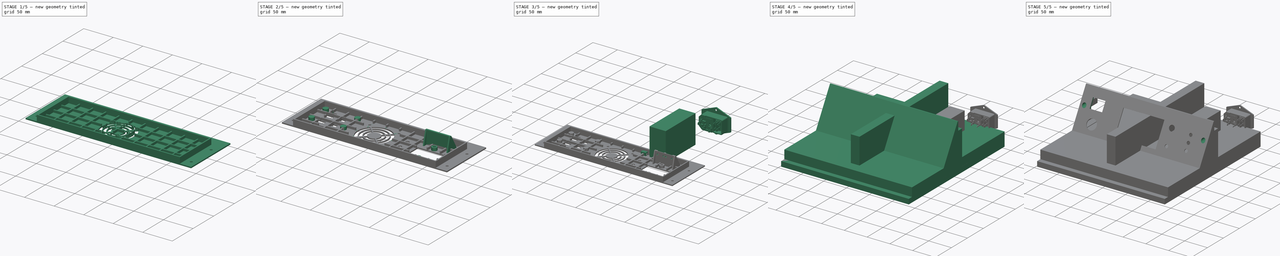
[diagram: build sequence overview — one tinted view per stage of 5, left to right]
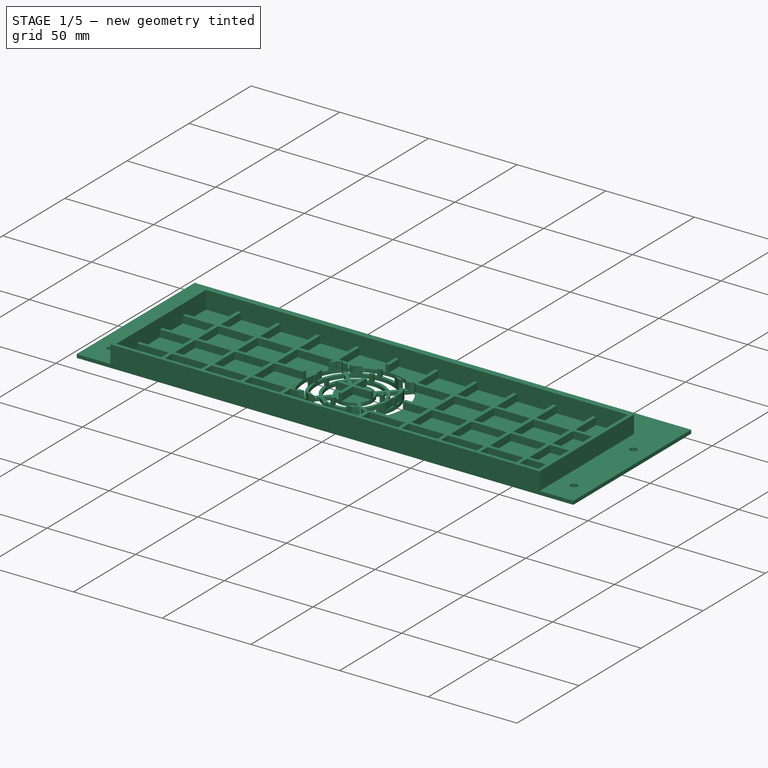
[diagram: stage 1 of 5 — iso view after this stage's code; geometry added in this stage tinted green]
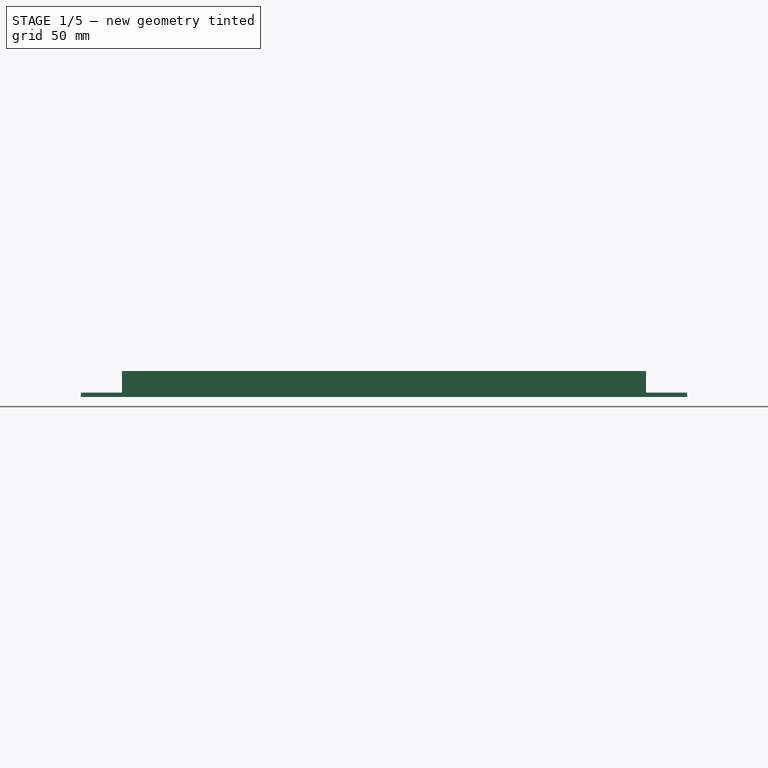
[diagram: stage 1 of 5 — front view after this stage's code; geometry added in this stage tinted green]
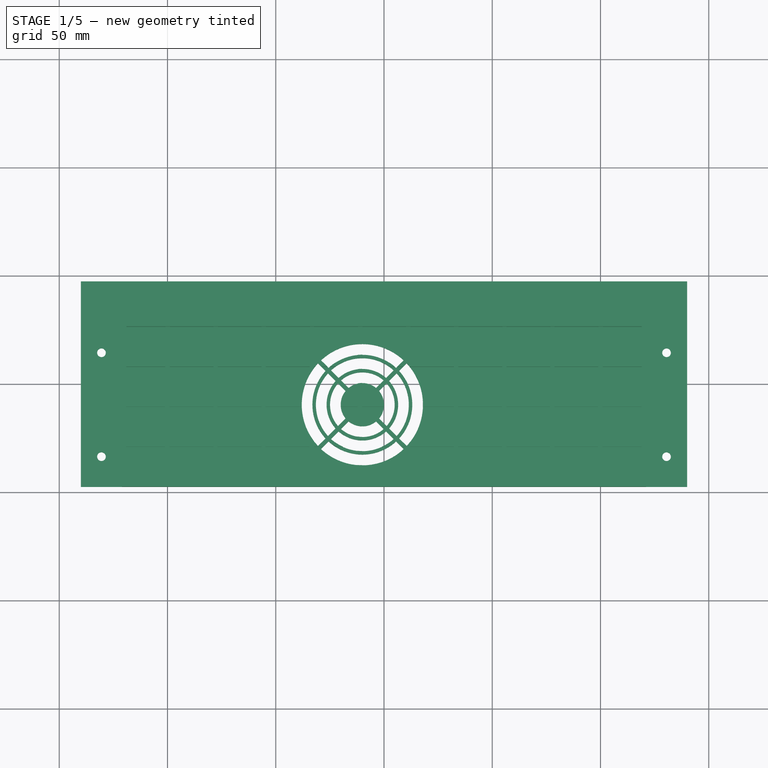
[diagram: stage 1 of 5 — top view after this stage's code; geometry added in this stage tinted green]
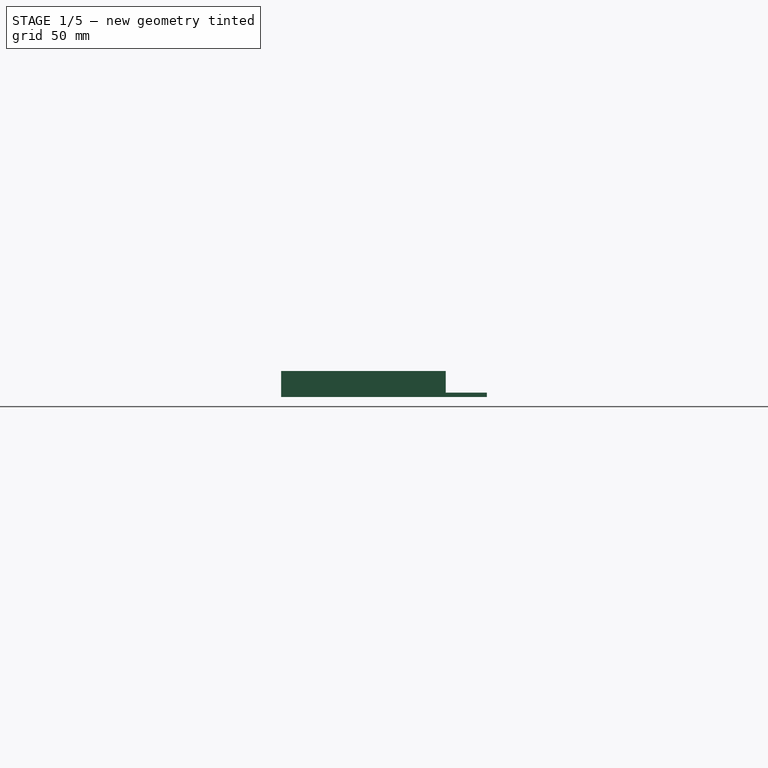
[diagram: stage 1 of 5 — right view after this stage's code; geometry added in this stage tinted green]
FCSTD DOCUMENT  (FreeCAD 0.22R38261 (Git))
Label: Base
License: Creative Commons Attribution
LicenseURL: http://creativecommons.org/licenses/by/4.0/
objects: Part::Feature×46, Sketcher::SketchObject×30, App::Part×17, PartDesign::Pad×15, PartDesign::Pocket×14, PartDesign::Body×7, PartDesign::LinearPattern×3, PartDesign::ShapeBinder×1, PartDesign::Plane×1, PartDesign::FeatureBase×1, PartDesign::Mirrored×1, PartDesign::MultiTransform×1, Part::Box×1, Part::Compound×1, PartDesign::PolarPattern×1, PartDesign::Hole×1
note: 191 computed .brp shape members not serialized (recipe doc carries the construction recipe); baked Part::Feature solids carry a one-line shape summary decoded from their .brp

FEATURE [Part::Feature] Compound008  label="2x USB A Buchse THT"
  Placement = pos=(85.8,132,57.9) rot=(0,0,1;0rad)
  shape: bbox 34.02 x 23.36 x 10.52 mm, 3756 faces, 11 solids (baked)
FEATURE [App::Part] Part003  label="Wood"
  Group = -> [Body002,Body001002,Body001003,Body001]
  Origin = -> Origin015
FEATURE [Sketcher::SketchObject] Sketch015
  AttachmentSupport = -> [XY_Plane017]
  FullyConstrained = true
  MapMode = 5
  sketch-geometry (9):
    g0: LineSegment StartX=-140 StartY=47.5 StartZ=0 EndX=140 EndY=47.5 EndZ=0
    g1: LineSegment StartX=140 StartY=47.5 StartZ=0 EndX=140 EndY=-47.5 EndZ=0
    g2: LineSegment StartX=140 StartY=-47.5 StartZ=0 EndX=-140 EndY=-47.5 EndZ=0
    g3: LineSegment StartX=-140 StartY=-47.5 StartZ=0 EndX=-140 EndY=47.5 EndZ=0
    g4: LineSegment StartX=-140 StartY=28.5 StartZ=0 EndX=140 EndY=28.5 EndZ=0
    g5: Circle CenterX=-130.5 CenterY=14.5 CenterZ=0 NormalX=0 NormalY=0 NormalZ=1 AngleXU=0 Radius=2
    g6: Circle CenterX=-130.5 CenterY=-33.5 CenterZ=0 NormalX=0 NormalY=0 NormalZ=1 AngleXU=0 Radius=2
    g7: Circle CenterX=130.5 CenterY=14.5 CenterZ=0 NormalX=0 NormalY=0 NormalZ=1 AngleXU=0 Radius=2
    g8: Circle CenterX=130.5 CenterY=-33.5 CenterZ=0 NormalX=0 NormalY=0 NormalZ=1 AngleXU=0 Radius=2
  constraints (26):
    c: Coincident(g0,g1)
    c: Coincident(g1,g2)
    c: Coincident(g2,g3)
    c: Coincident(g3,g0)
    c: Horizontal(g0)
    c: Horizontal(g2)
    c: Vertical(g1)
    c: Vertical(g3)
    c: Symmetric(g2,g0,g-1)
    c: DistanceX(g0,g0) = 280
    c: DistanceY(g3,g3) = 95
    c: PointOnObject(g4,g3)
    c: PointOnObject(g4,g1)
    c: Horizontal(g4)
    c: DistanceY(g4,g0) = 19
    c: Vertical(g6,g5)
    c: Vertical(g8,g7)
    c: Horizontal(g7,g5)
    c: Symmetric(g6,g8,g-2)
    c: Equal(g5,g7)
    c: Equal(g7,g8)
    c: Equal(g8,g6)
    c: DistanceX(g6,g8) = 261
    c: DistanceY(g1,g8) = 14
    c: DistanceY(g6,g5) = 48
    c: Diameter(g7) = 4
FEATURE [PartDesign::Pad] Pad007
  Direction = (0,0,1)
  Length = 2
  Length2 = 10
  Profile = -> Sketch015
  ReferenceAxis = -> Sketch015 [N_Axis]
  Suppressed = false
  Type = 0
FEATURE [Sketcher::SketchObject] Sketch016
  AttachmentOffset = pos=(0,0,2) rot=(0,0,1;0rad)
  AttachmentSupport = -> [XY_Plane017]
  ExternalGeometry = -> [Sketch015]
  FullyConstrained = true
  MapMode = 5
  Placement = pos=(0,0,2) rot=(0,0,1;0rad)
  expr: .AttachmentOffset.Base.z = Pad007.Length
  sketch-geometry (69):
    g0: LineSegment StartX=62 StartY=-6.5 StartZ=0 EndX=109.5 EndY=-6.5 EndZ=0
    g1: LineSegment StartX=109.5 StartY=-6.5 StartZ=0 EndX=109.5 EndY=-34 EndZ=0
    g2: LineSegment StartX=109.5 StartY=-34 StartZ=0 EndX=62 EndY=-34 EndZ=0
    g3: LineSegment StartX=62 StartY=-34 StartZ=0 EndX=62 EndY=-6.5 EndZ=0
    g4: LineSegment StartX=70.25 StartY=19.6 StartZ=0 EndX=84.55 EndY=19.6 EndZ=0
    g5: LineSegment StartX=101.25 StartY=19.6 StartZ=0 EndX=101.25 EndY=12.4 EndZ=0
    g6: LineSegment StartX=101.25 StartY=12.4 StartZ=0 EndX=86.95 EndY=12.4 EndZ=0
    g7: LineSegment StartX=70.25 StartY=12.4 StartZ=0 EndX=70.25 EndY=19.6 EndZ=0
    g8: LineSegment StartX=-10 StartY=-9.5 StartZ=0 EndX=-10 EndY=28.5 EndZ=0
    g9: LineSegment StartX=-10 StartY=-9.5 StartZ=0 EndX=-10 EndY=-47.5 EndZ=0
    g10: Circle CenterX=40 CenterY=-0.5 CenterZ=0 NormalX=0 NormalY=0 NormalZ=1 AngleXU=0 Radius=3
    g11: Circle CenterX=40 CenterY=-18.5 CenterZ=0 NormalX=0 NormalY=0 NormalZ=1 AngleXU=0 Radius=3
    g12: Circle CenterX=-10 CenterY=-9.5 CenterZ=0 NormalX=0 NormalY=0 NormalZ=1 AngleXU=0 Radius=28
    g13: LineSegment StartX=-35 StartY=15.5 StartZ=0 EndX=15 EndY=15.5 EndZ=0
    g14: LineSegment StartX=15 StartY=15.5 StartZ=0 EndX=15 EndY=-34.5 EndZ=0
    g15: LineSegment StartX=15 StartY=-34.5 StartZ=0 EndX=-35 EndY=-34.5 EndZ=0
    g16: LineSegment StartX=-35 StartY=-34.5 StartZ=0 EndX=-35 EndY=15.5 EndZ=0
    g17: LineSegment StartX=85.75 StartY=28.5 StartZ=0 EndX=85.75 EndY=-34 EndZ=0
    g18: Circle CenterX=85.75 CenterY=-0.5 CenterZ=0 NormalX=0 NormalY=0 NormalZ=1 AngleXU=0 Radius=1.5
    g19: Circle CenterX=85.75 CenterY=-40 CenterZ=0 NormalX=0 NormalY=0 NormalZ=1 AngleXU=0 Radius=1.5
    g20: LineSegment StartX=62 StartY=-20.25 StartZ=0 EndX=109.5 EndY=-20.25 EndZ=0
    g21: GeomPoint X=85.75 Y=16 Z=0
    g22: LineSegment StartX=84.55 StartY=19.6 StartZ=0 EndX=84.55 EndY=12.4 EndZ=0
    g23: LineSegment StartX=86.95 StartY=19.6 StartZ=0 EndX=86.95 EndY=12.4 EndZ=0
    g24: LineSegment StartX=84.55 StartY=12.4 StartZ=0 EndX=70.25 EndY=12.4 EndZ=0
    g25: LineSegment StartX=86.95 StartY=19.6 StartZ=0 EndX=101.25 EndY=19.6 EndZ=0
    g26: GeomPoint X=40 Y=-9.5 Z=0
    g27: LineSegment StartX=-140 StartY=28.5 StartZ=0 EndX=140 EndY=28.5 EndZ=0
    g28: LineSegment StartX=-100.4 StartY=19.025 StartZ=0 EndX=-92.6 EndY=19.025 EndZ=0
    g29: LineSegment StartX=-92.6 StartY=19.025 StartZ=0 EndX=-92.6 EndY=12.875 EndZ=0
    g30: LineSegment StartX=-92.6 StartY=12.875 StartZ=0 EndX=-100.4 EndY=12.875 EndZ=0
    g31: LineSegment StartX=-100.4 StartY=12.875 StartZ=0 EndX=-100.4 EndY=19.025 EndZ=0
    g32: LineSegment StartX=-102.9 StartY=8.875 StartZ=0 EndX=-90.1 EndY=8.875 EndZ=0
    g33: LineSegment StartX=-90.1 StartY=8.875 StartZ=0 EndX=-90.1 EndY=2.725 EndZ=0
    g34: LineSegment StartX=-90.1 StartY=2.725 StartZ=0 EndX=-102.9 EndY=2.725 EndZ=0
    g35: LineSegment StartX=-102.9 StartY=2.725 StartZ=0 EndX=-102.9 EndY=8.875 EndZ=0
    g36: LineSegment StartX=-102.9 StartY=-1.275 StartZ=0 EndX=-90.1 EndY=-1.275 EndZ=0
    g37: LineSegment StartX=-90.1 StartY=-1.275 StartZ=0 EndX=-90.1 EndY=-7.425 EndZ=0
    g38: LineSegment StartX=-90.1 StartY=-7.425 StartZ=0 EndX=-102.9 EndY=-7.425 EndZ=0
    g39: LineSegment StartX=-102.9 StartY=-7.425 StartZ=0 EndX=-102.9 EndY=-1.275 EndZ=0
    g40: LineSegment StartX=-102.9 StartY=-11.425 StartZ=0 EndX=-90.1 EndY=-11.425 EndZ=0
    g41: LineSegment StartX=-90.1 StartY=-11.425 StartZ=0 EndX=-90.1 EndY=-17.575 EndZ=0
    g42: LineSegment StartX=-90.1 StartY=-17.575 StartZ=0 EndX=-102.9 EndY=-17.575 EndZ=0
    g43: LineSegment StartX=-102.9 StartY=-17.575 StartZ=0 EndX=-102.9 EndY=-11.425 EndZ=0
    g44: LineSegment StartX=-77.54 StartY=8.875 StartZ=0 EndX=-69.74 EndY=8.875 EndZ=0
    g45: LineSegment StartX=-69.74 StartY=8.875 StartZ=0 EndX=-69.74 EndY=2.725 EndZ=0
    g46: LineSegment StartX=-69.74 StartY=2.725 StartZ=0 EndX=-77.54 EndY=2.725 EndZ=0
    g47: LineSegment StartX=-77.54 StartY=2.725 StartZ=0 EndX=-77.54 EndY=8.875 EndZ=0
    g48: LineSegment StartX=-77.54 StartY=-1.275 StartZ=0 EndX=-69.74 EndY=-1.275 EndZ=0
    g49: LineSegment StartX=-69.74 StartY=-1.275 StartZ=0 EndX=-69.74 EndY=-7.425 EndZ=0
    g50: LineSegment StartX=-69.74 StartY=-7.425 StartZ=0 EndX=-77.54 EndY=-7.425 EndZ=0
    g51: LineSegment StartX=-77.54 StartY=-7.425 StartZ=0 EndX=-77.54 EndY=-1.275 EndZ=0
    g52: LineSegment StartX=-77.54 StartY=-11.425 StartZ=0 EndX=-69.74 EndY=-11.425 EndZ=0
    g53: LineSegment StartX=-69.74 StartY=-11.425 StartZ=0 EndX=-69.74 EndY=-17.575 EndZ=0
    g54: LineSegment StartX=-69.74 StartY=-17.575 StartZ=0 EndX=-77.54 EndY=-17.575 EndZ=0
    g55: LineSegment StartX=-77.54 StartY=-17.575 StartZ=0 EndX=-77.54 EndY=-11.425 EndZ=0
    g56: LineSegment StartX=-102.9 StartY=2.725 StartZ=0 EndX=-102.9 EndY=-1.275 EndZ=0
    g57: LineSegment StartX=-102.9 StartY=-7.425 StartZ=0 EndX=-102.9 EndY=-11.425 EndZ=0
    g58: LineSegment StartX=-77.54 StartY=2.725 StartZ=0 EndX=-77.54 EndY=-1.275 EndZ=0
    g59: LineSegment StartX=-77.54 StartY=-7.425 StartZ=0 EndX=-77.54 EndY=-11.425 EndZ=0
    g60: GeomPoint X=-96.5 Y=-4.35 Z=0
    g61: GeomPoint X=-73.64 Y=-4.35 Z=0
    g62: GeomPoint X=-96.5 Y=15.95 Z=0
    g63: Circle CenterX=-35 CenterY=15.5 CenterZ=0 NormalX=0 NormalY=0 NormalZ=1 AngleXU=0 Radius=2
    g64: Circle CenterX=15 CenterY=15.5 CenterZ=0 NormalX=0 NormalY=0 NormalZ=1 AngleXU=0 Radius=2
    g65: Circle CenterX=15 CenterY=-34.5 CenterZ=0 NormalX=0 NormalY=0 NormalZ=1 AngleXU=0 Radius=2
    g66: Circle CenterX=-35 CenterY=-34.5 CenterZ=0 NormalX=0 NormalY=0 NormalZ=1 AngleXU=0 Radius=2
    g67: GeomPoint X=-96.5 Y=5.8 Z=0
    g68: LineSegment StartX=-100.4 StartY=12.875 StartZ=0 EndX=-100.4 EndY=8.875 EndZ=0
  constraints (184):
    c: Coincident(g0,g1)
    c: Coincident(g1,g2)
    c: Coincident(g2,g3)
    c: Coincident(g3,g0)
    c: Horizontal(g0)
    c: Horizontal(g2)
    c: Vertical(g1)
    c: Vertical(g3)
    c: Coincident(g25,g5)
    c: Coincident(g5,g6)
    c: Coincident(g24,g7)
    c: Coincident(g7,g4)
    c: Horizontal(g4)
    c: Vertical(g5)
    c: Vertical(g7)
    c: Vertical(g9)
    c: Vertical(g8)
    c: Equal(g9,g8)
    c: Diameter(g12) = 56
    c: Coincident(g13,g14)
    c: Coincident(g14,g15)
    c: Coincident(g15,g16)
    c: Coincident(g16,g13)
    c: Horizontal(g13)
    c: Horizontal(g15)
    c: Vertical(g14)
    c: Vertical(g16)
    c: Symmetric(g15,g13,g12)
    c: Equal(g15,g14)
    c: DistanceX(g13,g13) = 50
    c: DistanceX(g2,g2) = 47.5
    c: DistanceY(g3,g3) = 27.5
    c: DistanceY(g1,g-1) = 34
    c: DistanceX(g-1,g2) = 62
    c: DistanceX(g4,g25) = 31
    c: DistanceY(g7,g7) = 7.2
    c: PointOnObject(g17,g2)
    c: Symmetric(g1,g2,g17)
    c: Symmetric(g24,g5,g17)
    c: PointOnObject(g18,g17)
    c: PointOnObject(g20,g3)
    c: PointOnObject(g20,g1)
    c: Symmetric(g2,g0,g20)
    c: Symmetric(g19,g18,g20)
    c: DistanceY(g19,g18) = 39.5
    c: Equal(g18,g19)
    c: Diameter(g19) = 3
    c: Symmetric(g24,g25,g21)
    c: DistanceY(g-1,g21) = 16
    c: PointOnObject(g22,g6)
    c: Vertical(g22)
    c: PointOnObject(g23,g4)
    c: Vertical(g23)
    c: DistanceX(g22,g23) = 2.4
    c: Coincident(g6,g23)
    c: Coincident(g4,g22)
    c: Symmetric(g22,g6,g17)
    c: Horizontal(g25)
    c: Coincident(g23,g25)
    c: Coincident(g24,g22)
    c: Vertical(g11,g10)
    c: Symmetric(g11,g10,g26)
    c: Equal(g10,g11)
    c: Diameter(g10) = 6
    c: DistanceY(g11,g10) = 18
    c: Horizontal(g12,g26)
    c: DistanceX(g9,g11) = 50
    c: Coincident(g9,g8)
    c: Coincident(g12,g8)
    c: Horizontal(g27)
    c: Vertical(g27,g-3)
    c: Vertical(g27,g-3)
    c: DistanceY(g27,g-3) = 19
    c: PointOnObject(g9,g-4)
    c: PointOnObject(g17,g27)
    c: Coincident(g28,g29)
    c: Coincident(g29,g30)
    c: Coincident(g30,g31)
    c: Coincident(g31,g28)
    c: Horizontal(g28)
    c: Horizontal(g30)
    c: Vertical(g29)
    c: Vertical(g31)
    c: Coincident(g32,g33)
    c: Coincident(g33,g34)
    c: Coincident(g34,g35)
    c: Coincident(g35,g32)
    c: Horizontal(g32)
    c: Horizontal(g34)
    c: Vertical(g33)
    c: Vertical(g35)
    c: Coincident(g36,g37)
    c: Coincident(g37,g38)
    c: Coincident(g38,g39)
    c: Coincident(g39,g36)
    c: Horizontal(g36)
    c: Horizontal(g38)
    c: Vertical(g37)
    c: Vertical(g39)
    c: Coincident(g40,g41)
    c: Coincident(g41,g42)
    c: Coincident(g42,g43)
    c: Coincident(g43,g40)
    c: Horizontal(g40)
    c: Horizontal(g42)
    c: Vertical(g41)
    c: Vertical(g43)
    c: Coincident(g44,g45)
    c: Coincident(g45,g46)
    c: Coincident(g46,g47)
    c: Coincident(g47,g44)
    c: Horizontal(g44)
    c: Horizontal(g46)
    c: Vertical(g45)
    c: Vertical(g47)
    c: Coincident(g48,g49)
    c: Coincident(g49,g50)
    c: Coincident(g50,g51)
    c: Coincident(g51,g48)
    c: Horizontal(g48)
    c: Horizontal(g50)
    c: Vertical(g49)
    c: Vertical(g51)
    c: Coincident(g52,g53)
    c: Coincident(g53,g54)
    c: Coincident(g54,g55)
    c: Coincident(g55,g52)
    c: Horizontal(g52)
    c: Horizontal(g54)
    c: Vertical(g53)
    c: Vertical(g55)
    c: Equal(g55,g51)
    c: Equal(g51,g47)
    c: Equal(g47,g43)
    c: Equal(g43,g39)
    c: Equal(g39,g35)
    c: Equal(g35,g31)
    c: Equal(g46,g50)
    c: Equal(g50,g54)
    c: Equal(g42,g38)
    c: Equal(g38,g34)
    c: Coincident(g56,g34)
    c: Coincident(g56,g36)
    c: Vertical(g56)
    c: Coincident(g57,g38)
    c: Coincident(g57,g40)
    c: Vertical(g57)
    c: Coincident(g58,g46)
    c: Coincident(g58,g48)
    c: Vertical(g58)
    c: Coincident(g59,g50)
    c: Coincident(g59,g52)
    c: Equal(g56,g57)
    c: Equal(g57,g58)
    c: Equal(g58,g59)
    c: Vertical(g59)
    c: DistanceY(g31,g31) = 6.15
    c: DistanceX(g28,g28) = 7.8
    c: DistanceX(g32,g32) = 12.8
    c: Horizontal(g44,g32)
    c: Symmetric(g50,g48,g61)
    c: Symmetric(g30,g28,g62)
    c: Symmetric(g38,g36,g60)
    c: Vertical(g62,g60)
    c: Coincident(g63,g13)
    c: Coincident(g64,g13)
    c: Coincident(g65,g14)
    c: Coincident(g66,g15)
    c: Equal(g63,g64)
    c: Equal(g64,g65)
    c: Equal(g65,g66)
    c: Diameter(g66) = 4
    c: PointOnObject(g8,g27)
    c: DistanceY(g60,g-1) = 4.35
    c: DistanceX(g62,g-1) = 96.5
    c: Symmetric(g34,g32,g67)
    c: DistanceY(g60,g67) = 10.15
    c: Coincident(g68,g30)
    c: PointOnObject(g68,g32)
    c: Vertical(g68)
    c: Equal(g56,g68)
    c: Equal(g28,g44)
    c: DistanceX(g60,g61) = 22.86
    c: DistanceX(g8,g-1) = 10
FEATURE [Sketcher::SketchObject] Sketch017
  AttachmentOffset = pos=(0,0,2) rot=(0,0,1;0rad)
  AttachmentSupport = -> [XY_Plane017]
  ExternalGeometry = -> [Sketch015]
  FullyConstrained = true
  MapMode = 5
  Placement = pos=(0,0,2) rot=(0,0,1;0rad)
  expr: .AttachmentOffset.Base.z = Pad007.Length
  sketch-geometry (8):
    g0: LineSegment StartX=-119 StartY=-45.5 StartZ=0 EndX=-119 EndY=26.5 EndZ=0
    g1: LineSegment StartX=-119 StartY=26.5 StartZ=0 EndX=119 EndY=26.5 EndZ=0
    g2: LineSegment StartX=119 StartY=26.5 StartZ=0 EndX=119 EndY=-45.5 EndZ=0
    g3: LineSegment StartX=119 StartY=-45.5 StartZ=0 EndX=-119 EndY=-45.5 EndZ=0
    g4: LineSegment StartX=-121 StartY=-47.5 StartZ=0 EndX=-121 EndY=28.5 EndZ=0
    g5: LineSegment StartX=-121 StartY=28.5 StartZ=0 EndX=121 EndY=28.5 EndZ=0
    g6: LineSegment StartX=121 StartY=28.5 StartZ=0 EndX=121 EndY=-47.5 EndZ=0
    g7: LineSegment StartX=121 StartY=-47.5 StartZ=0 EndX=-121 EndY=-47.5 EndZ=0
  constraints (22):
    c: Vertical(g0)
    c: Coincident(g0,g1)
    c: Coincident(g1,g2)
    c: Vertical(g2)
    c: Coincident(g2,g3)
    c: Coincident(g3,g0)
    c: Horizontal(g3)
    c: Vertical(g4)
    c: Coincident(g4,g5)
    c: Coincident(g5,g6)
    c: Vertical(g6)
    c: Coincident(g6,g7)
    c: Coincident(g7,g4)
    c: Horizontal(g7)
    c: Symmetric(g5,g4,g-2)
    c: DistanceY(g5,g-3) = 19
    c: DistanceY(g0,g4) = 2
    c: DistanceX(g5,g5) = 242
    c: Symmetric(g0,g1,g-2)
    c: DistanceX(g1,g1) = 238
    c: DistanceY(g4,g0) = 2
    c: PointOnObject(g4,g-4)
FEATURE [PartDesign::Pad] Pad008  label="Pad_FitFrame"
  BaseFeature = -> Pad007
  Direction = (0,0,1)
  Length = 10
  Length2 = 10
  Profile = -> Sketch017
  ReferenceAxis = -> Sketch017 [N_Axis]
  Suppressed = false
  Type = 0
FEATURE [Sketcher::SketchObject] Sketch018
  AttachmentOffset = pos=(0,0,2) rot=(0,0,1;0rad)
  AttachmentSupport = -> [XY_Plane017]
  ExternalGeometry = -> [Sketch015]
  FullyConstrained = true
  MapMode = 5
  Placement = pos=(0,0,2) rot=(0,0,1;0rad)
  expr: .AttachmentOffset.Base.z = Pad007.Length
  sketch-geometry (20):
    g0: LineSegment StartX=-10 StartY=-9.5 StartZ=0 EndX=-10 EndY=28.5 EndZ=0
    g1: LineSegment StartX=-10 StartY=-9.5 StartZ=0 EndX=-10 EndY=-47.5 EndZ=0
    g2: Circle CenterX=-10 CenterY=-9.5 CenterZ=0 NormalX=0 NormalY=0 NormalZ=1 AngleXU=0 Radius=28
    g3: LineSegment StartX=-140 StartY=28.5 StartZ=0 EndX=140 EndY=28.5 EndZ=0
    g4: ArcOfCircle CenterX=-10 CenterY=-9.5 CenterZ=0 NormalX=0 NormalY=0 NormalZ=1 AngleXU=0 Radius=28 StartAngle=5.53351 EndAngle=7.03286
    g5: LineSegment StartX=-10 StartY=-9.5 StartZ=0 EndX=9.79899 EndY=-29.299 EndZ=0
    g6: LineSegment StartX=-10 StartY=-9.5 StartZ=0 EndX=9.79899 EndY=10.299 EndZ=0
    g7: LineSegment StartX=-9.29289 StartY=-10.2071 StartZ=0 EndX=10.4935 EndY=9.57925 EndZ=0
    g8: LineSegment StartX=-9.29289 StartY=-8.79289 StartZ=0 EndX=10.4935 EndY=-28.5793 EndZ=0
    g9: ArcOfCircle CenterX=-10 CenterY=-9.5 CenterZ=0 NormalX=0 NormalY=0 NormalZ=1 AngleXU=0 Radius=23.0597 StartAngle=5.54117 EndAngle=7.0252
    g10: ArcOfCircle CenterX=-10 CenterY=-9.5 CenterZ=0 NormalX=0 NormalY=0 NormalZ=1 AngleXU=0 Radius=21.4614 StartAngle=5.5444 EndAngle=7.02197
    g11: ArcOfCircle CenterX=-10 CenterY=-9.5 CenterZ=0 NormalX=0 NormalY=0 NormalZ=1 AngleXU=0 Radius=16.5242 StartAngle=5.55834 EndAngle=7.00803
    g12: LineSegment StartX=10.4935 StartY=9.57925 StartZ=0 EndX=6.99747 EndY=6.08325 EndZ=0
    g13: LineSegment StartX=5.8661 StartY=4.95188 StartZ=0 EndX=2.3701 EndY=1.45589 EndZ=0
    g14: LineSegment StartX=10.4935 StartY=-28.5793 StartZ=0 EndX=6.99747 EndY=-25.0833 EndZ=0
    g15: LineSegment StartX=5.8661 StartY=-23.9519 StartZ=0 EndX=2.3701 EndY=-20.4559 EndZ=0
    g16: ArcOfCircle CenterX=-10 CenterY=-9.5 CenterZ=0 NormalX=0 NormalY=0 NormalZ=1 AngleXU=0 Radius=14.9275 StartAngle=5.56483 EndAngle=7.00154
    g17: ArcOfCircle CenterX=-10 CenterY=-9.5 CenterZ=0 NormalX=0 NormalY=0 NormalZ=1 AngleXU=0 Radius=10 StartAngle=5.59795 EndAngle=6.96842
    g18: LineSegment StartX=-2.25727 StartY=-3.17148 StartZ=0 EndX=1.23873 EndY=0.324515 EndZ=0
    g19: LineSegment StartX=-2.25727 StartY=-15.8285 StartZ=0 EndX=1.23873 EndY=-19.3245 EndZ=0
  constraints (62):
    c: Vertical(g1)
    c: Vertical(g0)
    c: Equal(g1,g0)
    c: Diameter(g2) = 56
    c: Coincident(g1,g0)
    c: Coincident(g2,g0)
    c: Horizontal(g3)
    c: Vertical(g3,g-3)
    c: Vertical(g3,g-3)
    c: DistanceY(g3,g-3) = 19
    c: PointOnObject(g1,g-4)
    c: Coincident(g4,g0)
    c: Coincident(g5,g4)
    c: PointOnObject(g5,g2)
    c: Coincident(g6,g4)
    c: PointOnObject(g6,g2)
    c: Perpendicular(g6,g5)
    c: Angle(g-1,g6) = 0.785398
    c: PointOnObject(g7,g5)
    c: PointOnObject(g7,g2)
    c: PointOnObject(g8,g6)
    c: PointOnObject(g8,g2)
    c: Parallel(g5,g8)
    c: Parallel(g7,g6)
    c: Distance(g7,g4) = 1
    c: Distance(g8,g4) = 1
    c: PointOnObject(g4,g8)
    c: Coincident(g9,g4)
    c: PointOnObject(g9,g7)
    c: PointOnObject(g9,g8)
    c: Coincident(g10,g4)
    c: PointOnObject(g10,g7)
    c: PointOnObject(g10,g8)
    c: Coincident(g11,g4)
    c: PointOnObject(g11,g7)
    c: PointOnObject(g11,g8)
    c: Coincident(g4,g7)
    c: Coincident(g12,g4)
    c: Coincident(g12,g9)
    c: Coincident(g13,g10)
    c: Coincident(g13,g11)
    c: Coincident(g14,g4)
    c: Coincident(g14,g9)
    c: Coincident(g15,g10)
    c: Coincident(g15,g11)
    c: Equal(g12,g13)
    c: Distance(g10,g9) = 1.6
    c: Coincident(g16,g4)
    c: PointOnObject(g16,g8)
    c: PointOnObject(g16,g7)
    c: Coincident(g17,g4)
    c: PointOnObject(g17,g7)
    c: PointOnObject(g17,g8)
    c: Coincident(g18,g17)
    c: Coincident(g18,g16)
    c: Coincident(g19,g17)
    c: Coincident(g19,g16)
    c: Distance(g16,g11) = 1.6
    c: Radius(g17) = 10
    c: Equal(g18,g13)
    c: PointOnObject(g0,g3)
    c: DistanceX(g0,g-1) = 10
FEATURE [Part::Feature] Body011004  label="Prototype Board_60x40"
  shape: bbox 60 x 40 x 1.5 mm, 290 faces (baked)
FEATURE [Part::Feature] Part__Feature008  label="JST_B2B_XH_A_003"
  Placement = pos=(-11.43,-3.81,1.5) rot=(0,0,1;0rad)
  shape: bbox 7.4 x 5.75 x 10.4 mm, 89 faces (baked)
FEATURE [Part::Feature] Part__Feature048  label="JST_B2B_XH_A_001"
  Placement = pos=(11.43,16.51,1.5) rot=(0,0,1;0rad)
  shape: bbox 7.4 x 5.75 x 10.4 mm, 89 faces (baked)
FEATURE [Part::Feature] Part__Feature009  label="JST_B2B_XH_A_004"
  Placement = pos=(-11.43,-13.97,1.5) rot=(0,0,1;0rad)
  shape: bbox 7.4 x 5.75 x 10.4 mm, 89 faces (baked)
FEATURE [Part::Feature] Part__Feature049  label="JST_B4B_XH_A_001"
  Placement = pos=(8.9,6.35,1.5) rot=(0,0,1;0rad)
  shape: bbox 12.4 x 5.75 x 10.4 mm, 141 faces (baked)
FEATURE [Part::Feature] Part__Feature010  label="JST_B4B_XH_A_002"
  Placement = pos=(8.9,-3.81,1.5) rot=(0,0,1;0rad)
  shape: bbox 12.4 x 5.75 x 10.4 mm, 141 faces (baked)
FEATURE [Part::Feature] Part__Feature011  label="JST_B4B_XH_A_003"
  Placement = pos=(8.9,-13.97,1.5) rot=(0,0,1;0rad)
  shape: bbox 12.4 x 5.75 x 10.4 mm, 141 faces (baked)
FEATURE [Part::Feature] Part__Feature007  label="JST_B2B_XH_A_002"
  Placement = pos=(-11.43,6.35,1.5) rot=(0,0,1;0rad)
  shape: bbox 7.4 x 5.75 x 10.4 mm, 89 faces (baked)
FEATURE [App::Part] Part004  label="Connector-Board"
  Group = -> [Body011004,Part__Feature048,Part__Feature007,Part__Feature008,Part__Feature009,Part__Feature049,Part__Feature010,Part__Feature011]
  Origin = -> Origin017
  Placement = pos=(-83.85,148.5,47.48) rot=(0,-0.707107,-0.707107;3.14159rad)
FEATURE [Part::Feature] Part__Feature050  label="4 mm Banana (female) Jack (socket)_black"
  Placement = pos=(40,144,29) rot=(0,0,1;0rad)
  shape: bbox 14.2 x 33.32 x 14.2 mm, 322 faces, 5 solids (baked)
FEATURE [Part::Feature] Part__Feature051  label="4 mm Banana (female) Jack (socket)_red"
  Placement = pos=(40,144,47) rot=(0,0,1;0rad)
  shape: bbox 14.2 x 33.32 x 14.2 mm, 322 faces, 5 solids (baked)
FEATURE [PartDesign::Body] Body011005  label="VentMesh"
  AllowCompound = false
  Origin = -> Origin018
FEATURE [App::Part] Part005  label="Front-Panel"
  Group = -> [Part,Compound002,Compound003]
  Origin = -> Origin019
FEATURE [App::Part] Part006  label="Back-Panel"
  Group = -> [Panel_Fan,Compound006,Compound007,Body011002,Compound,Compound008,Part004,Part__Feature050,Part__Feature051]
  Origin = -> Origin020
FEATURE [Sketcher::SketchObject] Sketch019
  AttachmentOffset = pos=(0,0,2) rot=(0,0,1;0rad)
  AttachmentSupport = -> [XY_Plane017]
  ExternalGeometry = -> [Sketch016]
  FullyConstrained = true
  MapMode = 5
  Placement = pos=(0,0,2) rot=(0,0,1;0rad)
  expr: .AttachmentOffset.Base.z = Pad007.Length
  sketch-geometry (6):
    g0: Circle CenterX=-110.85 CenterY=17 CenterZ=0 NormalX=0 NormalY=0 NormalZ=1 AngleXU=0 Radius=4.5
    g1: Circle CenterX=-110.85 CenterY=-17 CenterZ=0 NormalX=0 NormalY=0 NormalZ=1 AngleXU=0 Radius=4.5
    g2: Circle CenterX=-56.85 CenterY=17 CenterZ=0 NormalX=0 NormalY=0 NormalZ=1 AngleXU=0 Radius=4.5
    g3: Circle CenterX=-56.85 CenterY=-17 CenterZ=0 NormalX=0 NormalY=0 NormalZ=1 AngleXU=0 Radius=4.5
    g4: Circle CenterX=85.75 CenterY=-0.5 CenterZ=0 NormalX=0 NormalY=0 NormalZ=1 AngleXU=0 Radius=4.5
    g5: Circle CenterX=85.75 CenterY=-40 CenterZ=0 NormalX=0 NormalY=0 NormalZ=1 AngleXU=0 Radius=4.5
  constraints (15):
    c: DistanceY(g1,g0) = 34
    c: DistanceX(g1,g3) = 54
    c: Symmetric(g3,g2,g-1)
    c: Horizontal(g1,g3)
    c: Horizontal(g0,g2)
    c: Vertical(g1,g0)
    c: DistanceX(g2,g-1) = 56.85
    c: Diameter(g0) = 9
    c: Equal(g0,g2)
    c: Equal(g2,g3)
    c: Equal(g3,g1)
    c: Coincident(g4,g-3)
    c: Coincident(g5,g-4)
    c: Equal(g0,g4)
    c: Equal(g4,g5)
FEATURE [Sketcher::SketchObject] Sketch020
  AttachmentOffset = pos=(0,0,2) rot=(0,0,1;0rad)
  AttachmentSupport = -> [XY_Plane017]
  FullyConstrained = true
  MapMode = 5
  Placement = pos=(0,0,2) rot=(0,0,1;0rad)
  expr: .AttachmentOffset.Base.z = Pad007.Length
  sketch-geometry (4):
    g0: LineSegment StartX=66.8 StartY=10.4 StartZ=0 EndX=104.8 EndY=10.4 EndZ=0
    g1: LineSegment StartX=104.8 StartY=10.4 StartZ=0 EndX=104.8 EndY=7.4 EndZ=0
    g2: LineSegment StartX=104.8 StartY=7.4 StartZ=0 EndX=66.8 EndY=7.4 EndZ=0
    g3: LineSegment StartX=66.8 StartY=7.4 StartZ=0 EndX=66.8 EndY=10.4 EndZ=0
  constraints (12):
    c: Coincident(g0,g1)
    c: Coincident(g1,g2)
    c: Coincident(g2,g3)
    c: Coincident(g3,g0)
    c: Horizontal(g0)
    c: Horizontal(g2)
    c: Vertical(g1)
    c: Vertical(g3)
    c: DistanceY(g-1,g0) = 10.4
    c: DistanceY(g3,g3) = 3
    c: DistanceX(g-1,g0) = 66.8
    c: DistanceX(g2,g2) = 38
FEATURE [Sketcher::SketchObject] Sketch021
  AttachmentOffset = pos=(0,0,66.8) rot=(0,0,1;0rad)
  AttachmentSupport = -> [YZ_Plane017]
  FullyConstrained = true
  MapMode = 5
  Placement = pos=(66.8,0,0) rot=(0.57735,0.57735,0.57735;2.0944rad)
  expr: Constraints[6] = Pad007.Length
  expr: Constraints[7] = Pad010.Length
  sketch-geometry (4):
    g0: LineSegment StartX=1.23717 StartY=2 StartZ=0 EndX=7.4 EndY=25 EndZ=0
    g1: LineSegment StartX=7.4 StartY=25 StartZ=0 EndX=10.4 EndY=25 EndZ=0
    g2: LineSegment StartX=10.4 StartY=25 StartZ=0 EndX=23.6791 EndY=2 EndZ=0
    g3: LineSegment StartX=23.6791 StartY=2 StartZ=0 EndX=1.23717 EndY=2 EndZ=0
  constraints (12):
    c: Coincident(g0,g1)
    c: Horizontal(g1)
    c: Coincident(g1,g2)
    c: Coincident(g2,g3)
    c: Coincident(g3,g0)
    c: Horizontal(g3)
    c: DistanceY(g-1,g0) = 2
    c: DistanceY(g0,g0) = 23
    c: Angle(g-2,g2) = 0.523599
    c: DistanceX(g1,g1) = 3
    c: DistanceX(g-1,g0) = 7.4
    c: Angle(g0,g-2) = 0.261799
FEATURE [Part::Feature] Part__Feature052  label="RawPCB"
  shape: bbox 43.25 x 1.35 x 21.75 mm, 12 faces (baked)
FEATURE [Part::Feature] Part__Feature053  label="PADZ"
  shape: bbox 42.75 x 0.01 x 21.25 mm, 36 faces, 6 solids (baked)
FEATURE [Part::Feature] Part__Feature054  label="PADZ(Mirror)"
  Placement = pos=(0,1.35,0) rot=(1,0,0;3.14159rad)
  shape: bbox 42.75 x 0.01 x 21.25 mm, 36 faces, 6 solids (baked)
FEATURE [Part::Feature] Part__Feature055  label="ScreenPrint"
  shape: bbox 42.64 x 0.01 x 15.24 mm, 178 faces, 14 solids (baked)
FEATURE [App::Part] BarePCB
  Group = -> [Part__Feature052,Part__Feature053,Part__Feature054,Part__Feature055]
  Origin = -> Origin022
FEATURE [Part::Feature] Part__Feature056  label="Base"
  Placement = pos=(32.125,0,-0.875) rot=(0,0,1;0rad)
  shape: bbox 8.25 x 1 x 8.25 mm, 8 faces (baked)
FEATURE [Part::Feature] Part__Feature057  label="Can"
  Placement = pos=(32.125,0,-0.875) rot=(0,0,1;0rad)
  shape: bbox 8.859 x 9.25 x 8.859 mm, 6 faces (baked)
FEATURE [App::Part] ElectrolyticCap
  Group = -> [Part__Feature056,Part__Feature057]
  Origin = -> Origin023
FEATURE [Part::Feature] Part__Feature058  label="Inductor"
  Placement = pos=(5.65,-0.2,-0.6) rot=(0,0,1;0rad)
  shape: bbox 12.66 x 7.316 x 12.66 mm, 49 faces (baked)
FEATURE [Part::Feature] Part__Feature059  label="Body"
  shape: bbox 9.6 x 9.8 x 4.8 mm, 26 faces (baked)
FEATURE [Part::Feature] Part__Feature060  label="Screw"
  shape: bbox 2.25 x 1.5 x 2.25 mm, 7 faces (baked)
FEATURE [App::Part] TrimPot
  Group = -> [Part__Feature059,Part__Feature060]
  Origin = -> Origin024
FEATURE [Part::Feature] Part__Feature061  label="Body (1)"
  Placement = pos=(0,0,-3.25) rot=(0,0,1;0rad)
  shape: bbox 10 x 4.5 x 9 mm, 6 faces (baked)
FEATURE [Part::Feature] Part__Feature062  label="ThermTab"
  Placement = pos=(0,0,-3.25) rot=(0,0,1;0rad)
  shape: bbox 10 x 1.5 x 2 mm, 8 faces (baked)
FEATURE [Part::Feature] Part__Feature063  label="Pin"
  shape: bbox 0.8 x 2.5 x 5 mm, 14 faces (baked)
FEATURE [Part::Feature] Part__Feature064  label="Pin001"
  Placement = pos=(2,0,0) rot=(0,0,1;0rad)
  shape: bbox 0.8 x 2.5 x 5 mm, 14 faces (baked)
FEATURE [Part::Feature] Part__Feature065  label="Pin002"
  Placement = pos=(4,0,0) rot=(0,0,1;0rad)
  shape: bbox 0.8 x 2.5 x 5 mm, 14 faces (baked)
FEATURE [Part::Feature] Part__Feature066  label="Pin003"
  Placement = pos=(6,0,0) rot=(0,0,1;0rad)
  shape: bbox 0.8 x 2.5 x 5 mm, 14 faces (baked)
FEATURE [Part::Feature] Part__Feature067  label="Pin004"
  Placement = pos=(8,0,0) rot=(0,0,1;0rad)
  shape: bbox 0.8 x 2.5 x 5 mm, 14 faces (baked)
FEATURE [App::Part] Pins
  Group = -> [Part__Feature063,Part__Feature064,Part__Feature065,Part__Feature066,Part__Feature067]
  Origin = -> Origin025
  Placement = pos=(0.6,0,-3.25) rot=(0,0,1;0rad)
FEATURE [App::Part] Regulator
  Group = -> [Part__Feature061,Part__Feature062,Pins]
  Origin = -> Origin026
FEATURE [Part::Feature] Part__Feature068  label="Diode"
  Placement = pos=(5.35606,0,-0.85) rot=(0,0,1;0rad)
  shape: bbox 4.8 x 2 x 2.7 mm, 18 faces, 3 solids (baked)
FEATURE [Part::Feature] Part__Feature069  label="Base001"
  Placement = pos=(-1.875,-1.35,-0.875) rot=(0,0,1;0rad)
  shape: bbox 8.25 x 1 x 8.25 mm, 8 faces (baked)
FEATURE [Part::Feature] Part__Feature070  label="Can001"
  Placement = pos=(-1.875,-1.35,-0.875) rot=(0,0,1;0rad)
  shape: bbox 8.859 x 9.25 x 8.859 mm, 6 faces (baked)
FEATURE [App::Part] ElectrolyticCap001
  Group = -> [Part__Feature069,Part__Feature070]
  Origin = -> Origin027
  Placement = pos=(1,1.35,0) rot=(0,0,1;0rad)
FEATURE [App::Part] LM2596DCDC_v4  label="LM2596DCDC v4"
  Group = -> [BarePCB,ElectrolyticCap,Part__Feature058,TrimPot,Regulator,Part__Feature068,ElectrolyticCap001]
  Origin = -> Origin028
  Placement = pos=(-75.5,90,1.5) rot=(-0.57735,0.57735,0.57735;4.18879rad)
FEATURE [App::Part] Part007  label="Corpus"
  Group = -> [PowerSupply_2_240_12,Box,Part002,LM2596DCDC_v4]
  Origin = -> Origin021
FEATURE [Sketcher::SketchObject] Sketch022
  AttachmentOffset = pos=(0,0,2) rot=(0,0,1;0rad)
  AttachmentSupport = -> [XY_Plane017]
  ExternalGeometry = -> [Sketch017]
  FullyConstrained = true
  MapMode = 5
  Placement = pos=(0,0,2) rot=(0,0,1;0rad)
  expr: .AttachmentOffset.Base.z = Pad007.Length
  sketch-geometry (4):
    g0: LineSegment StartX=-101 StartY=26.5 StartZ=0 EndX=-99 EndY=26.5 EndZ=0
    g1: LineSegment StartX=-99 StartY=26.5 StartZ=0 EndX=-99 EndY=-45.5 EndZ=0
    g2: LineSegment StartX=-99 StartY=-45.5 StartZ=0 EndX=-101 EndY=-45.5 EndZ=0
    g3: LineSegment StartX=-101 StartY=-45.5 StartZ=0 EndX=-101 EndY=26.5 EndZ=0
  constraints (13):
    c: Coincident(g0,g1)
    c: Coincident(g1,g2)
    c: Coincident(g2,g3)
    c: Coincident(g3,g0)
    c: Horizontal(g0)
    c: Horizontal(g2)
    c: Vertical(g1)
    c: Vertical(g3)
    c: PointOnObject(g0,g-4)
    c: PointOnObject(g1,g-5)
    c: DistanceX(g-4,g-1) = 119
    c: DistanceX(g0,g0) = 2
    c: DistanceX(g0,g-1) = 101
FEATURE [PartDesign::Pad] Pad012
  BaseFeature = -> Pad008
  Direction = (0,0,1)
  Length = 4
  Length2 = 10
  Profile = -> Sketch022
  ReferenceAxis = -> Sketch022 [N_Axis]
  Suppressed = false
  Type = 0
FEATURE [PartDesign::LinearPattern] LinearPattern002
  BaseFeature = -> Pad012
  Direction = -> Sketch022 [H_Axis]
  Length = 200
  Mode = 0
  Occurrences = 10
  Offset = 22.2222
  Originals = -> [Pad012]
  Suppressed = false
  TransformMode = 0
FEATURE [Sketcher::SketchObject] Sketch023
  AttachmentOffset = pos=(0,0,2) rot=(0,0,1;0rad)
  AttachmentSupport = -> [XY_Plane017]
  ExternalGeometry = -> [Sketch017]
  FullyConstrained = true
  MapMode = 5
  Placement = pos=(0,0,2) rot=(0,0,1;0rad)
  expr: .AttachmentOffset.Base.z = Pad007.Length
  sketch-geometry (16):
    g0: LineSegment StartX=-119 StartY=10 StartZ=0 EndX=119 EndY=10 EndZ=0
    g1: LineSegment StartX=119 StartY=10 StartZ=0 EndX=119 EndY=8 EndZ=0
    g2: LineSegment StartX=119 StartY=8 StartZ=0 EndX=-119 EndY=8 EndZ=0
    g3: LineSegment StartX=-119 StartY=8 StartZ=0 EndX=-119 EndY=10 EndZ=0
    g4: LineSegment StartX=-119 StartY=-8.5 StartZ=0 EndX=119 EndY=-8.5 EndZ=0
    g5: LineSegment StartX=119 StartY=-8.5 StartZ=0 EndX=119 EndY=-10.5 EndZ=0
    g6: LineSegment StartX=119 StartY=-10.5 StartZ=0 EndX=-119 EndY=-10.5 EndZ=0
    g7: LineSegment StartX=-119 StartY=-10.5 StartZ=0 EndX=-119 EndY=-8.5 EndZ=0
    g8: LineSegment StartX=119 StartY=-27 StartZ=0 EndX=-119 EndY=-27 EndZ=0
    g9: LineSegment StartX=-119 StartY=-27 StartZ=0 EndX=-119 EndY=-29 EndZ=0
    g10: LineSegment StartX=-119 StartY=-29 StartZ=0 EndX=119 EndY=-29 EndZ=0
    g11: LineSegment StartX=119 StartY=-29 StartZ=0 EndX=119 EndY=-27 EndZ=0
    g12: LineSegment StartX=-90 StartY=8 StartZ=0 EndX=-90 EndY=-8.5 EndZ=0
    g13: LineSegment StartX=-90 StartY=-10.5 StartZ=0 EndX=-90 EndY=-27 EndZ=0
    g14: LineSegment StartX=-90 StartY=10 StartZ=0 EndX=-90 EndY=26.5 EndZ=0
    g15: LineSegment StartX=-90 StartY=-29 StartZ=0 EndX=-90 EndY=-45.5 EndZ=0
  constraints (52):
    c: Coincident(g0,g1)
    c: Coincident(g1,g2)
    c: Coincident(g2,g3)
    c: Coincident(g3,g0)
    c: Horizontal(g0)
    c: Horizontal(g2)
    c: Vertical(g1)
    c: Vertical(g3)
    c: PointOnObject(g0,g-3)
    c: PointOnObject(g1,g-4)
    c: DistanceY(g3,g3) = 2
    c: Coincident(g4,g5)
    c: Coincident(g5,g6)
    c: Coincident(g6,g7)
    c: Coincident(g7,g4)
    c: Horizontal(g4)
    c: Horizontal(g6)
    c: Vertical(g5)
    c: Vertical(g7)
    c: PointOnObject(g4,g-3)
    c: PointOnObject(g5,g-4)
    c: Coincident(g8,g9)
    c: Coincident(g9,g10)
    c: Coincident(g10,g11)
    c: Coincident(g11,g8)
    c: Horizontal(g8)
    c: Horizontal(g10)
    c: Vertical(g9)
    c: Vertical(g11)
    c: PointOnObject(g8,g-4)
    c: PointOnObject(g9,g-3)
    c: PointOnObject(g12,g2)
    c: PointOnObject(g12,g4)
    c: Vertical(g12)
    c: PointOnObject(g13,g6)
    c: PointOnObject(g13,g8)
    c: Vertical(g13)
    c: PointOnObject(g14,g0)
    c: Vertical(g14)
    c: PointOnObject(g15,g10)
    c: Vertical(g15)
    c: Horizontal(g15,g-3)
    c: Horizontal(g14,g-3)
    c: Vertical(g14,g12)
    c: Vertical(g12,g13)
    c: Vertical(g13,g15)
    c: Equal(g9,g7)
    c: Equal(g7,g3)
    c: Equal(g14,g12)
    c: Equal(g12,g13)
    c: Equal(g13,g15)
    c: DistanceX(g14,g-1) = 90
FEATURE [PartDesign::Pad] Pad013
  BaseFeature = -> LinearPattern002
  Direction = (0,0,1)
  Length = 4
  Length2 = 10
  Profile = -> Sketch023
  ReferenceAxis = -> Sketch023 [N_Axis]
  Suppressed = false
  Type = 0
FEATURE [PartDesign::Pocket] Pocket008  label="Pocket_Fan"
  BaseFeature = -> Pad013
  Direction = (0,0,-1)
  Length = 5
  Length2 = 5
  Midplane = true
  Profile = -> Sketch018
  ReferenceAxis = -> Sketch018 [N_Axis]
  Suppressed = false
  Type = 1
FEATURE [PartDesign::PolarPattern] PolarPattern
  Angle = 360
  Axis = -> Pocket008 [Edge23]
  BaseFeature = -> Pocket008
  Mode = 0
  Occurrences = 4
  Offset = 120
  Originals = -> [Pocket008]
  Suppressed = false
  TransformMode = 0
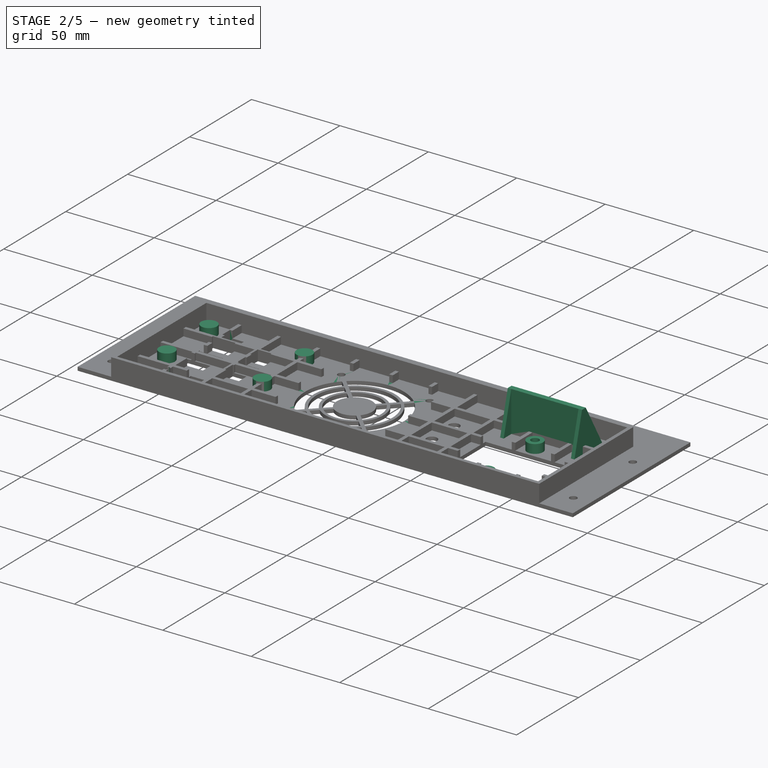
[diagram: stage 2 of 5 — iso view after this stage's code; geometry added in this stage tinted green]
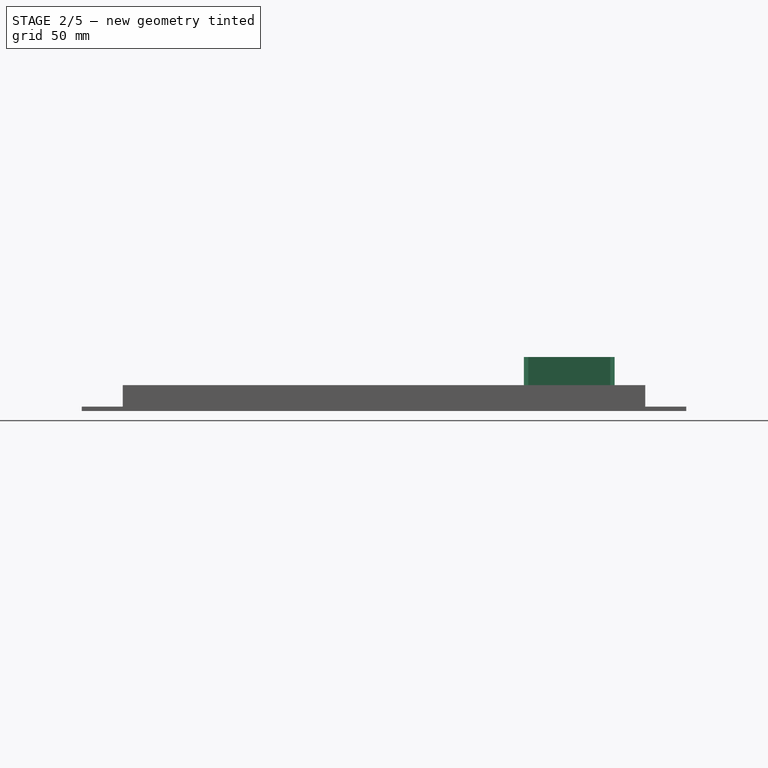
[diagram: stage 2 of 5 — front view after this stage's code; geometry added in this stage tinted green]
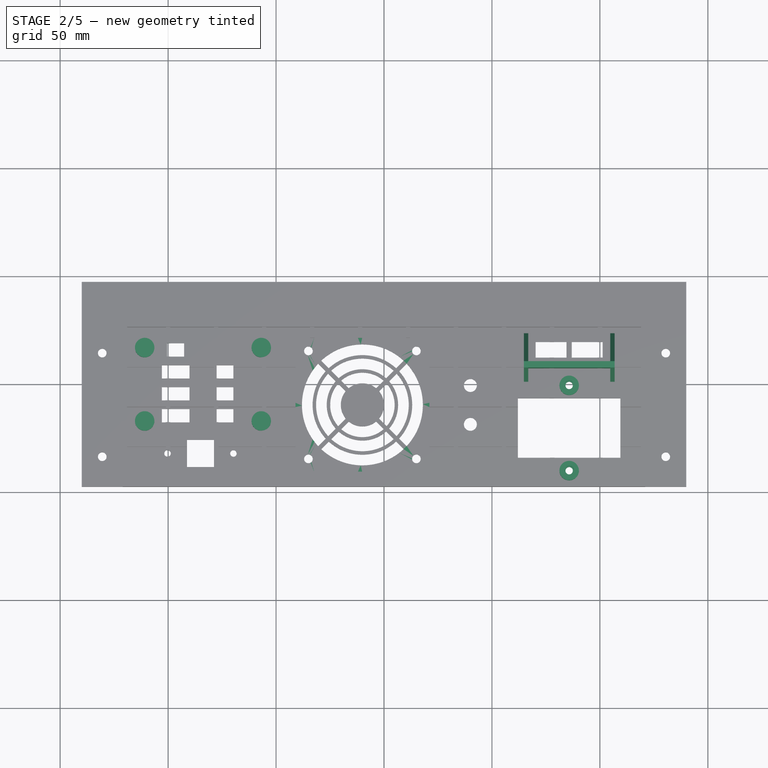
[diagram: stage 2 of 5 — top view after this stage's code; geometry added in this stage tinted green]
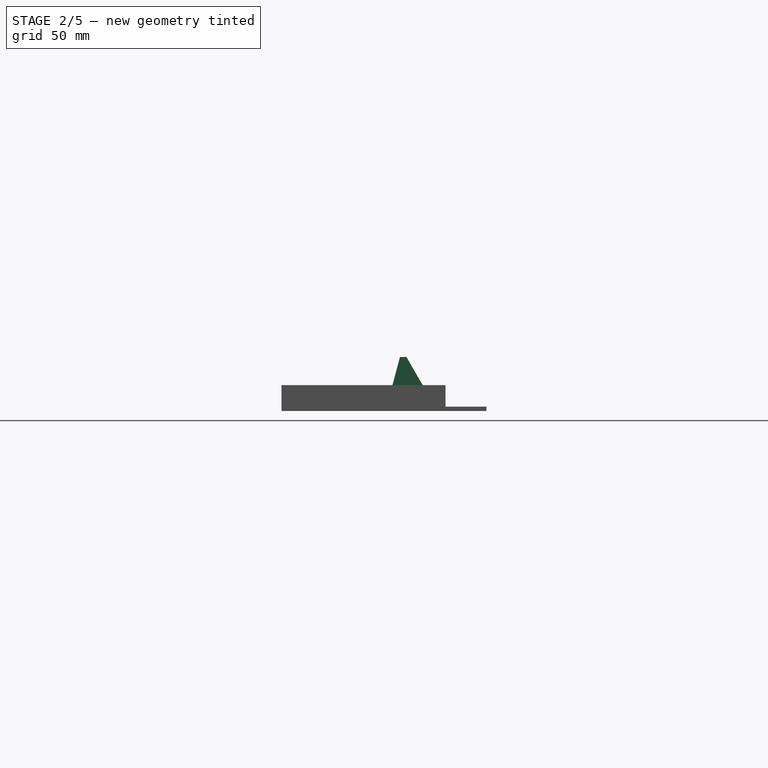
[diagram: stage 2 of 5 — right view after this stage's code; geometry added in this stage tinted green]
FEATURE [Sketcher::SketchObject] Sketch024
  AttachmentOffset = pos=(0,0,2) rot=(0,0,1;0rad)
  AttachmentSupport = -> [XY_Plane017]
  ExternalGeometry = -> [Sketch018]
  FullyConstrained = true
  MapMode = 5
  Placement = pos=(0,0,2) rot=(0,0,1;0rad)
  expr: .AttachmentOffset.Base.z = Pad007.Length
  sketch-geometry (5):
    g0: LineSegment StartX=-41 StartY=-40.5 StartZ=0 EndX=-41 EndY=21.5 EndZ=0
    g1: LineSegment StartX=-41 StartY=21.5 StartZ=0 EndX=21 EndY=21.5 EndZ=0
    g2: LineSegment StartX=21 StartY=21.5 StartZ=0 EndX=21 EndY=-40.5 EndZ=0
    g3: LineSegment StartX=21 StartY=-40.5 StartZ=0 EndX=-41 EndY=-40.5 EndZ=0
    g4: GeomPoint X=-10 Y=-9.5 Z=0
  constraints (12):
    c: Coincident(g0,g1)
    c: Coincident(g1,g2)
    c: Coincident(g2,g3)
    c: Coincident(g3,g0)
    c: Horizontal(g1)
    c: Horizontal(g3)
    c: Vertical(g0)
    c: Vertical(g2)
    c: Symmetric(g1,g0,g4)
    c: Coincident(g4,g-3)
    c: Equal(g0,g1)
    c: DistanceX(g1,g1) = 62
FEATURE [Sketcher::SketchObject] Sketch025
  AttachmentOffset = pos=(0,0,-10.4) rot=(0,0,1;0rad)
  AttachmentSupport = -> [XZ_Plane017]
  FullyConstrained = true
  MapMode = 5
  Placement = pos=(0,10.4,-2.3e-15) rot=(1,0,0;1.5708rad)
  expr: .AttachmentOffset.Base.z = -Sketch020.Constraints[8]
  sketch-geometry (27):
    g0: LineSegment StartX=70.7 StartY=10 StartZ=0 EndX=72.3 EndY=10 EndZ=0
    g1: LineSegment StartX=72.3 StartY=10 StartZ=0 EndX=72.3 EndY=14.4 EndZ=0
    g2: LineSegment StartX=72.3 StartY=14.4 StartZ=0 EndX=82.3 EndY=14.4 EndZ=0
    g3: LineSegment StartX=82.3 StartY=14.4 StartZ=0 EndX=82.3 EndY=10 EndZ=0
    g4: LineSegment StartX=82.3 StartY=10 StartZ=0 EndX=83.9 EndY=10 EndZ=0
    g5: LineSegment StartX=83.9 StartY=10 StartZ=0 EndX=83.9 EndY=16 EndZ=0
    g6: LineSegment StartX=83.9 StartY=16 StartZ=0 EndX=70.7 EndY=16 EndZ=0
    g7: LineSegment StartX=70.7 StartY=16 StartZ=0 EndX=70.7 EndY=10 EndZ=0
    g8: LineSegment StartX=87.7 StartY=10 StartZ=0 EndX=87.7 EndY=16 EndZ=0
    g9: LineSegment StartX=87.7 StartY=16 StartZ=0 EndX=100.9 EndY=16 EndZ=0
    g10: LineSegment StartX=100.9 StartY=16 StartZ=0 EndX=100.9 EndY=10 EndZ=0
    g11: LineSegment StartX=100.9 StartY=10 StartZ=0 EndX=99.3 EndY=10 EndZ=0
    g12: LineSegment StartX=99.3 StartY=10 StartZ=0 EndX=99.3 EndY=14.4 EndZ=0
    g13: LineSegment StartX=99.3 StartY=14.4 StartZ=0 EndX=89.3 EndY=14.4 EndZ=0
    g14: LineSegment StartX=89.3 StartY=14.4 StartZ=0 EndX=89.3 EndY=10 EndZ=0
    g15: LineSegment StartX=89.3 StartY=10 StartZ=0 EndX=87.7 EndY=10 EndZ=0
    g16: LineSegment StartX=85.8 StartY=0 StartZ=0 EndX=85.8 EndY=25 EndZ=0
    g17: LineSegment StartX=77.3 StartY=0 StartZ=0 EndX=77.3 EndY=25 EndZ=0
    g18: LineSegment StartX=94.3 StartY=0 StartZ=0 EndX=94.3 EndY=25 EndZ=0
    g19: LineSegment StartX=70.7 StartY=25.2 StartZ=0 EndX=83.9 EndY=25.2 EndZ=0
    g20: LineSegment StartX=83.9 StartY=25.2 StartZ=0 EndX=83.9 EndY=21.8 EndZ=0
    g21: LineSegment StartX=83.9 StartY=21.8 StartZ=0 EndX=70.7 EndY=21.8 EndZ=0
    g22: LineSegment StartX=70.7 StartY=21.8 StartZ=0 EndX=70.7 EndY=25.2 EndZ=0
    g23: LineSegment StartX=87.7 StartY=25.2 StartZ=0 EndX=100.9 EndY=25.2 EndZ=0
    g24: LineSegment StartX=100.9 StartY=25.2 StartZ=0 EndX=100.9 EndY=21.8 EndZ=0
    g25: LineSegment StartX=100.9 StartY=21.8 StartZ=0 EndX=87.7 EndY=21.8 EndZ=0
    g26: LineSegment StartX=87.7 StartY=21.8 StartZ=0 EndX=87.7 EndY=25.2 EndZ=0
  constraints (79):
    c: Horizontal(g0)
    c: Coincident(g0,g1)
    c: Vertical(g1)
    c: Coincident(g1,g2)
    c: Horizontal(g2)
    c: Coincident(g2,g3)
    c: Coincident(g3,g4)
    c: Horizontal(g4)
    c: Coincident(g4,g5)
    c: Vertical(g5)
    c: Coincident(g5,g6)
    c: Horizontal(g6)
    c: Coincident(g6,g7)
    c: Coincident(g7,g0)
    c: Vertical(g7)
    c: Vertical(g8)
    c: Coincident(g8,g9)
    c: Horizontal(g9)
    c: Coincident(g9,g10)
    c: Vertical(g10)
    c: Coincident(g10,g11)
    c: Coincident(g11,g12)
    c: Vertical(g12)
    c: Coincident(g12,g13)
    c: Horizontal(g13)
    c: Coincident(g13,g14)
    c: Coincident(g14,g15)
    c: Coincident(g15,g8)
    c: Horizontal(g15)
    c: Horizontal(g11)
    c: Vertical(g3)
    c: Vertical(g14)
    c: PointOnObject(g16,g-1)
    c: Vertical(g16)
    c: DistanceX(g-1,g16) = 85.8
    c: DistanceY(g16,g16) = 25
    c: PointOnObject(g17,g-1)
    c: Equal(g16,g17)
    c: Equal(g17,g18)
    c: Symmetric(g17,g18,g16)
    c: DistanceX(g17,g18) = 17
    c: Symmetric(g5,g6,g17)
    c: Symmetric(g8,g9,g18)
    c: Horizontal(g8,g5)
    c: Equal(g5,g8)
    c: Equal(g8,g10)
    c: Equal(g10,g7)
    c: Equal(g0,g4)
    c: Equal(g4,g15)
    c: Equal(g15,g11)
    c: Equal(g3,g14)
    c: DistanceX(g0,g0) = 1.6
    c: DistanceY(g1,g6) = 1.6
    c: DistanceX(g14,g11) = 10
    c: DistanceY(g10,g10) = 6
    c: DistanceY(g16,g10) = 10
    c: Equal(g9,g6)
    c: Coincident(g19,g20)
    c: Coincident(g20,g21)
    c: Coincident(g21,g22)
    c: Coincident(g22,g19)
    c: Horizontal(g19)
    c: Vertical(g20)
    c: Vertical(g22)
    c: Coincident(g23,g24)
    c: Coincident(g24,g25)
    c: Coincident(g25,g26)
    c: Coincident(g26,g23)
    c: Horizontal(g23)
    c: Vertical(g24)
    c: Vertical(g26)
    c: Symmetric(g25,g24,g18)
    c: Symmetric(g20,g21,g17)
    c: Horizontal(g20,g25)
    c: Equal(g20,g26)
    c: Equal(g21,g25)
    c: Equal(g25,g6)
    c: DistanceY(g16,g24) = 21.8
    c: DistanceY(g22,g22) = 3.4
FEATURE [Sketcher::SketchObject] Sketch026
  AttachmentOffset = pos=(0,0,-10.4) rot=(0,0,1;0rad)
  AttachmentSupport = -> [XZ_Plane017]
  FullyConstrained = true
  MapMode = 5
  Placement = pos=(0,10.4,-2.3e-15) rot=(1,0,0;1.5708rad)
  expr: .AttachmentOffset.Base.z = -Sketch020.Constraints[8]
  sketch-geometry (7):
    g0: LineSegment StartX=85.8 StartY=0 StartZ=0 EndX=85.8 EndY=25 EndZ=0
    g1: LineSegment StartX=77.3 StartY=0 StartZ=0 EndX=77.3 EndY=25 EndZ=0
    g2: LineSegment StartX=94.3 StartY=0 StartZ=0 EndX=94.3 EndY=25 EndZ=0
    g3: Circle CenterX=71.3 CenterY=19 CenterZ=0 NormalX=0 NormalY=0 NormalZ=1 AngleXU=0 Radius=1.35
    g4: Circle CenterX=83.3 CenterY=19 CenterZ=0 NormalX=0 NormalY=0 NormalZ=1 AngleXU=0 Radius=1.35
    g5: Circle CenterX=88.3 CenterY=19 CenterZ=0 NormalX=0 NormalY=0 NormalZ=1 AngleXU=0 Radius=1.35
    g6: Circle CenterX=100.3 CenterY=19 CenterZ=0 NormalX=0 NormalY=0 NormalZ=1 AngleXU=0 Radius=1.35
  constraints (21):
    c: PointOnObject(g0,g-1)
    c: Vertical(g0)
    c: DistanceX(g-1,g0) = 85.8
    c: DistanceY(g0,g0) = 25
    c: PointOnObject(g1,g-1)
    c: Equal(g0,g1)
    c: Equal(g1,g2)
    c: Symmetric(g1,g2,g0)
    c: DistanceX(g1,g2) = 17
    c: Diameter(g3) = 2.7
    c: Equal(g3,g4)
    c: Equal(g4,g5)
    c: Equal(g5,g6)
    c: Symmetric(g3,g4,g1)
    c: Symmetric(g5,g6,g2)
    c: Horizontal(g5,g4)
    c: DistanceY(g0,g3) = 19
    c: DistanceX(g3,g4) = 12
    c: DistanceX(g5,g6) = 12
    c: Vertical(g2)
    c: Vertical(g1)
FEATURE [Sketcher::SketchObject] Sketch027
  AttachmentOffset = pos=(0,0,2) rot=(0,0,1;0rad)
  AttachmentSupport = -> [XY_Plane017]
  ExternalGeometry = -> [Sketch017]
  FullyConstrained = true
  MapMode = 5
  Placement = pos=(0,0,2) rot=(0,0,1;0rad)
  expr: .AttachmentOffset.Base.z = Pad007.Length
  sketch-geometry (5):
    g0: LineSegment StartX=33.333 StartY=26.5 StartZ=0 EndX=33.333 EndY=-45.5 EndZ=0
    g1: LineSegment StartX=31.833 StartY=26.5 StartZ=0 EndX=34.833 EndY=26.5 EndZ=0
    g2: LineSegment StartX=34.833 StartY=26.5 StartZ=0 EndX=34.833 EndY=-45.5 EndZ=0
    g3: LineSegment StartX=34.833 StartY=-45.5 StartZ=0 EndX=31.833 EndY=-45.5 EndZ=0
    g4: LineSegment StartX=31.833 StartY=-45.5 StartZ=0 EndX=31.833 EndY=26.5 EndZ=0
  constraints (15):
    c: DistanceX(g-1,g0) = 33.333
    c: Vertical(g0)
    c: PointOnObject(g0,g-3)
    c: PointOnObject(g0,g-4)
    c: Coincident(g1,g2)
    c: Coincident(g2,g3)
    c: Coincident(g3,g4)
    c: Coincident(g4,g1)
    c: Horizontal(g1)
    c: Horizontal(g3)
    c: Vertical(g2)
    c: Vertical(g4)
    c: PointOnObject(g0,g1)
    c: Symmetric(g3,g2,g0)
    c: DistanceX(g1,g1) = 3
FEATURE [Sketcher::SketchObject] Sketch028
  AttachmentOffset = pos=(0,0,2) rot=(0,0,1;0rad)
  AttachmentSupport = -> [XY_Plane017]
  ExternalGeometry = -> [Sketch017]
  FullyConstrained = true
  MapMode = 5
  Placement = pos=(0,0,2) rot=(0,0,1;0rad)
  expr: .AttachmentOffset.Base.z = Pad007.Length
  sketch-geometry (9):
    g0: LineSegment StartX=33.333 StartY=26.5 StartZ=0 EndX=33.333 EndY=-45.5 EndZ=0
    g1: LineSegment StartX=28.333 StartY=26.5 StartZ=0 EndX=38.333 EndY=26.5 EndZ=0
    g2: LineSegment StartX=38.333 StartY=-45.5 StartZ=0 EndX=28.333 EndY=-45.5 EndZ=0
    g3: LineSegment StartX=28.333 StartY=26.5 StartZ=0 EndX=28.333 EndY=20.5 EndZ=0
    g4: LineSegment StartX=28.333 StartY=20.5 StartZ=0 EndX=38.333 EndY=20.5 EndZ=0
    g5: LineSegment StartX=38.333 StartY=20.5 StartZ=0 EndX=38.333 EndY=26.5 EndZ=0
    g6: LineSegment StartX=28.333 StartY=-45.5 StartZ=0 EndX=28.333 EndY=-39.5 EndZ=0
    g7: LineSegment StartX=28.333 StartY=-39.5 StartZ=0 EndX=38.333 EndY=-39.5 EndZ=0
    g8: LineSegment StartX=38.333 StartY=-39.5 StartZ=0 EndX=38.333 EndY=-45.5 EndZ=0
  constraints (26):
    c: DistanceX(g-1,g0) = 33.333
    c: Vertical(g0)
    c: PointOnObject(g0,g-3)
    c: PointOnObject(g0,g-4)
    c: Horizontal(g1)
    c: Horizontal(g2)
    c: Symmetric(g2,g2,g0)
    c: DistanceX(g1,g1) = 10
    c: Symmetric(g1,g1,g0)
    c: Coincident(g1,g3)
    c: Vertical(g3)
    c: Coincident(g3,g4)
    c: Horizontal(g4)
    c: Coincident(g4,g5)
    c: Coincident(g5,g1)
    c: Vertical(g5)
    c: Coincident(g2,g6)
    c: Vertical(g6)
    c: Coincident(g6,g7)
    c: Horizontal(g7)
    c: Coincident(g7,g8)
    c: Coincident(g8,g2)
    c: Vertical(g8)
    c: Equal(g2,g1)
    c: Equal(g3,g8)
    c: DistanceY(g3,g3) = 6
FEATURE [Sketcher::SketchObject] Sketch029
  AttachmentOffset = pos=(0,0,33.3333) rot=(0,0,1;0rad)
  AttachmentSupport = -> [YZ_Plane017]
  FullyConstrained = true
  MapMode = 5
  Placement = pos=(33.3333,0,0) rot=(0.57735,0.57735,0.57735;2.0944rad)
  sketch-geometry (2):
    g0: Circle CenterX=-42.5 CenterY=5 CenterZ=0 NormalX=0 NormalY=0 NormalZ=1 AngleXU=0 Radius=1.5
    g1: Circle CenterX=23.5 CenterY=5 CenterZ=0 NormalX=0 NormalY=0 NormalZ=1 AngleXU=0 Radius=1.5
  constraints (6):
    c: Diameter(g0) = 3
    c: DistanceX(g0,g-1) = 42.5
    c: Equal(g1,g0)
    c: DistanceX(g-1,g1) = 23.5
    c: DistanceY(g-1,g1) = 5
    c: Horizontal(g0,g1)
FEATURE [Part::Feature] Part__Feature071  label="KY-019_1"
  Placement = pos=(-84,22,4) rot=(0,0,1;0rad)
  shape: bbox 37.86 x 26.01 x 19.52 mm, 445 faces, 0 solids (baked)
FEATURE [App::Part] Part001  label="ElectricalParts"
  Group = -> [Part005,Part006,Part007,Part__Feature071]
  Origin = -> Origin012
FEATURE [Sketcher::SketchObject] Sketch030
  AttachmentOffset = pos=(0,0,2) rot=(0,0,1;0rad)
  AttachmentSupport = -> [XY_Plane017]
  ExternalGeometry = -> [Sketch015]
  FullyConstrained = true
  MapMode = 5
  Placement = pos=(0,0,2) rot=(0,0,1;0rad)
  expr: .AttachmentOffset.Base.z = Pad007.Length
  sketch-geometry (13):
    g0: Circle CenterX=-100.25 CenterY=-32 CenterZ=0 NormalX=0 NormalY=0 NormalZ=1 AngleXU=0 Radius=1.5
    g1: Circle CenterX=-69.75 CenterY=-32 CenterZ=0 NormalX=0 NormalY=0 NormalZ=1 AngleXU=0 Radius=1.5
    g2: LineSegment StartX=-85 StartY=-25.5 StartZ=0 EndX=-85 EndY=-38.5 EndZ=0
    g3: LineSegment StartX=-106 StartY=-25.5 StartZ=0 EndX=-106 EndY=-38.5 EndZ=0
    g4: LineSegment StartX=-106 StartY=-38.5 StartZ=0 EndX=-64 EndY=-38.5 EndZ=0
    g5: LineSegment StartX=-64 StartY=-38.5 StartZ=0 EndX=-64 EndY=-25.5 EndZ=0
    g6: LineSegment StartX=-64 StartY=-25.5 StartZ=0 EndX=-106 EndY=-25.5 EndZ=0
    g7: GeomPoint X=-85 Y=-32 Z=0
    g8: LineSegment StartX=-91.25 StartY=-38.25 StartZ=0 EndX=-78.75 EndY=-38.25 EndZ=0
    g9: LineSegment StartX=-78.75 StartY=-38.25 StartZ=0 EndX=-78.75 EndY=-25.75 EndZ=0
    g10: LineSegment StartX=-78.75 StartY=-25.75 StartZ=0 EndX=-91.25 EndY=-25.75 EndZ=0
    g11: LineSegment StartX=-91.25 StartY=-25.75 StartZ=0 EndX=-91.25 EndY=-38.25 EndZ=0
    g12: GeomPoint X=-85 Y=-32 Z=0
  constraints (34):
    c: Vertical(g2)
    c: Coincident(g3,g4)
    c: Coincident(g4,g5)
    c: Coincident(g5,g6)
    c: Coincident(g6,g3)
    c: Vertical(g3)
    c: Vertical(g5)
    c: Horizontal(g4)
    c: Horizontal(g6)
    c: Symmetric(g5,g3,g7)
    c: PointOnObject(g7,g2)
    c: PointOnObject(g2,g6)
    c: PointOnObject(g2,g4)
    c: DistanceX(g4,g4) = 42
    c: DistanceY(g3,g3) = 13
    c: Symmetric(g0,g1,g2)
    c: Equal(g0,g1)
    c: Diameter(g0) = 3
    c: DistanceX(g0,g1) = 30.5
    c: Horizontal(g1,g7)
    c: Coincident(g8,g9)
    c: Coincident(g9,g10)
    c: Coincident(g10,g11)
    c: Coincident(g11,g8)
    c: Horizontal(g8)
    c: Horizontal(g10)
    c: Vertical(g9)
    c: Vertical(g11)
    c: Symmetric(g10,g8,g12)
    c: Coincident(g12,g7)
    c: Equal(g11,g10)
    c: DistanceX(g10,g10) = 12.5
    c: DistanceX(g7,g-1) = 85
    c: DistanceY(g7,g-1) = 32
FEATURE [PartDesign::Pocket] Pocket013
  BaseFeature = -> PolarPattern
  Direction = (0,0,-1)
  Length = 5
  Length2 = 5
  Midplane = true
  Profile = -> Sketch016
  ReferenceAxis = -> Sketch016 [N_Axis]
  Refine = true
  Suppressed = false
  Type = 1
FEATURE [PartDesign::Pocket] Pocket014
  BaseFeature = -> Pocket013
  Direction = (0,0,-1)
  Length = 5
  Length2 = 5
  Midplane = true
  Profile = -> Sketch030
  ReferenceAxis = -> Sketch030 [N_Axis]
  Refine = true
  Suppressed = false
  Type = 1
FEATURE [PartDesign::Pocket] Pocket009
  BaseFeature = -> Pocket014
  Direction = (0,0,-1)
  Length = 5
  Length2 = 5
  Profile = -> Sketch024
  ReferenceAxis = -> Sketch024 [N_Axis]
  Reversed = true
  Suppressed = false
  Type = 1
FEATURE [PartDesign::Pad] Pad009
  BaseFeature = -> Pocket009
  Direction = (0,0,1)
  Length = 5
  Length2 = 10
  Profile = -> Sketch019
  ReferenceAxis = -> Sketch019 [N_Axis]
  Suppressed = false
  Type = 0
FEATURE [Sketcher::SketchObject] Sketch031
  AttachmentOffset = pos=(0,0,7) rot=(0,0,1;0rad)
  AttachmentSupport = -> [XY_Plane017]
  FullyConstrained = true
  MapMode = 5
  Placement = pos=(0,0,7) rot=(0,0,1;0rad)
  sketch-geometry (2):
    g0: Circle CenterX=85.75 CenterY=-0.5 CenterZ=0 NormalX=0 NormalY=0 NormalZ=1 AngleXU=0 Radius=1.5
    g1: Circle CenterX=85.75 CenterY=-40 CenterZ=0 NormalX=0 NormalY=0 NormalZ=1 AngleXU=0 Radius=1.5
  constraints (6):
    c: Vertical(g1,g0)
    c: DistanceX(g-1,g0) = 85.75
    c: DistanceY(g0,g-1) = 0.5
    c: DistanceY(g1,g0) = 39.5
    c: Equal(g1,g0)
    c: Diameter(g1) = 3
FEATURE [PartDesign::Hole] Hole
  BaseFeature = -> Pad009
  CustomThreadClearance = 0
  Depth = 597.76
  DepthType = 1
  Diameter = 3.4
  DrillForDepth = false
  DrillPoint = 1
  DrillPointAngle = 118
  HoleCutCountersinkAngle = 90
  HoleCutCustomValues = false
  HoleCutDepth = 4
  HoleCutDiameter = 4.5
  HoleCutType = 1
  ModelThread = false
  Profile = -> Sketch031
  Refine = true
  Suppressed = false
  Tapered = false
  TaperedAngle = 90
  ThreadClass = 0
  ThreadDepth = 597.76
  ThreadDepthType = 0
  ThreadDirection = 0
  ThreadFit = 0
  ThreadSize = 9
  ThreadType = 1
  Threaded = false
  UseCustomThreadClearance = false
  expr: HoleCutDiameter = 4.5
FEATURE [PartDesign::Pad] Pad010
  BaseFeature = -> Hole
  Direction = (0,0,1)
  Length = 23
  Length2 = 10
  Profile = -> Sketch020
  ReferenceAxis = -> Sketch020 [N_Axis]
  Suppressed = false
  Type = 0
FEATURE [PartDesign::Pad] Pad011
  BaseFeature = -> Pad010
  Direction = (1,0,0)
  Length = 2
  Length2 = 10
  Profile = -> Sketch021
  ReferenceAxis = -> Sketch021 [N_Axis]
  Reversed = true
  Suppressed = false
  Type = 0
FEATURE [PartDesign::LinearPattern] LinearPattern001
  BaseFeature = -> Pad011
  Direction = -> Sketch021 [N_Axis]
  Length = 40
  Mode = 0
  Occurrences = 2
  Offset = 40
  Originals = -> [Pad011]
  Suppressed = false
  TransformMode = 0
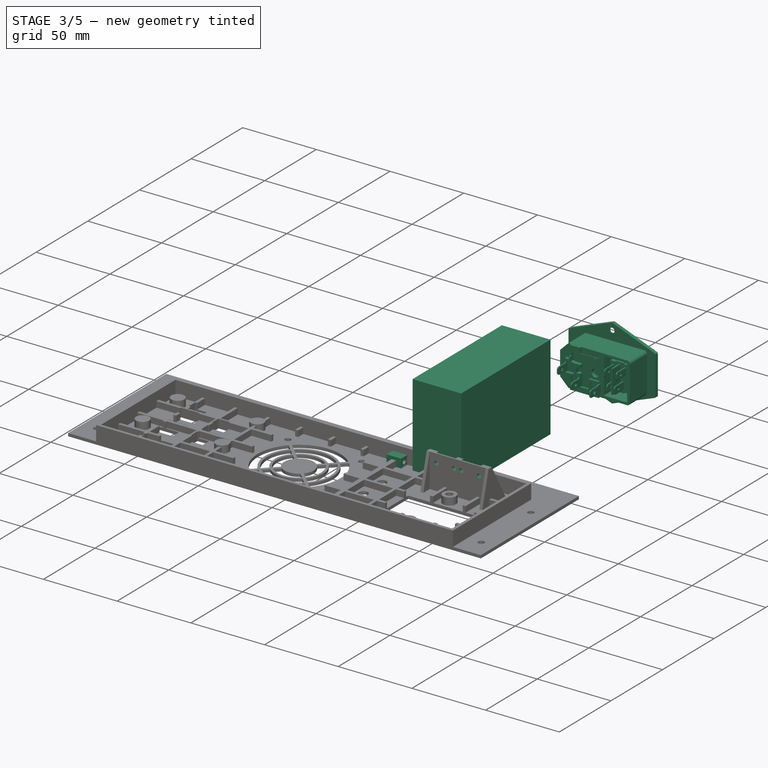
[diagram: stage 3 of 5 — iso view after this stage's code; geometry added in this stage tinted green]
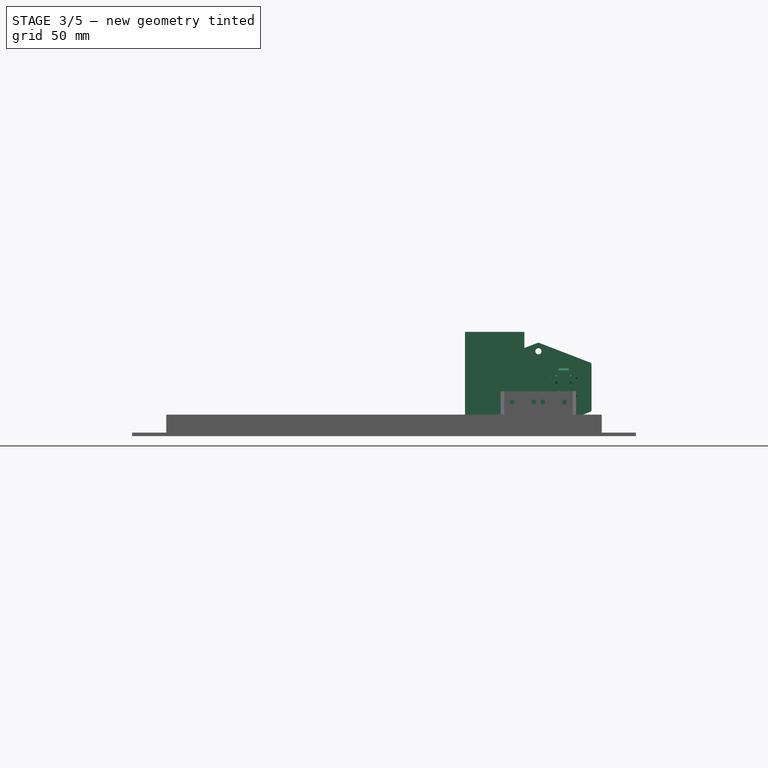
[diagram: stage 3 of 5 — front view after this stage's code; geometry added in this stage tinted green]
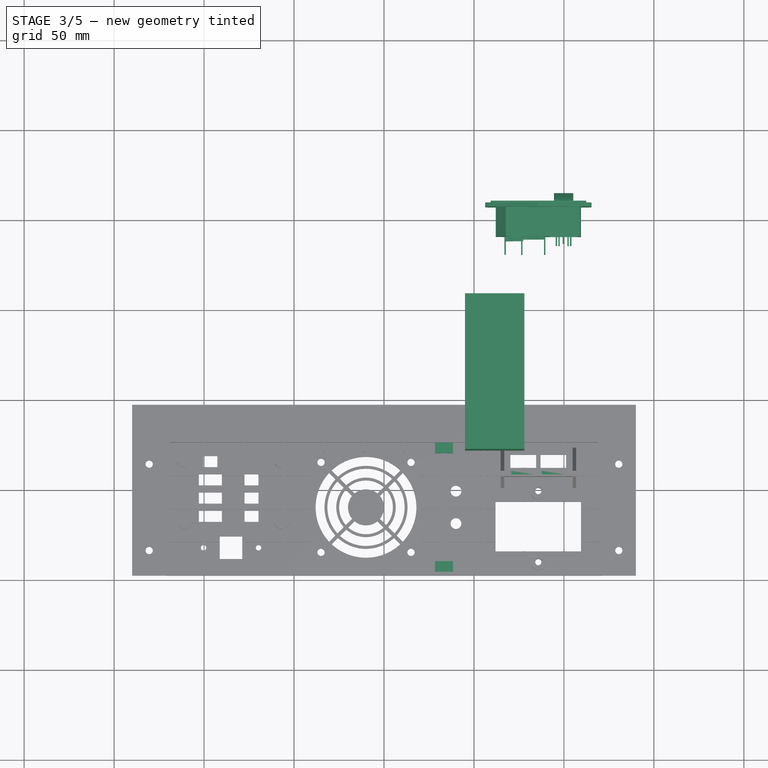
[diagram: stage 3 of 5 — top view after this stage's code; geometry added in this stage tinted green]
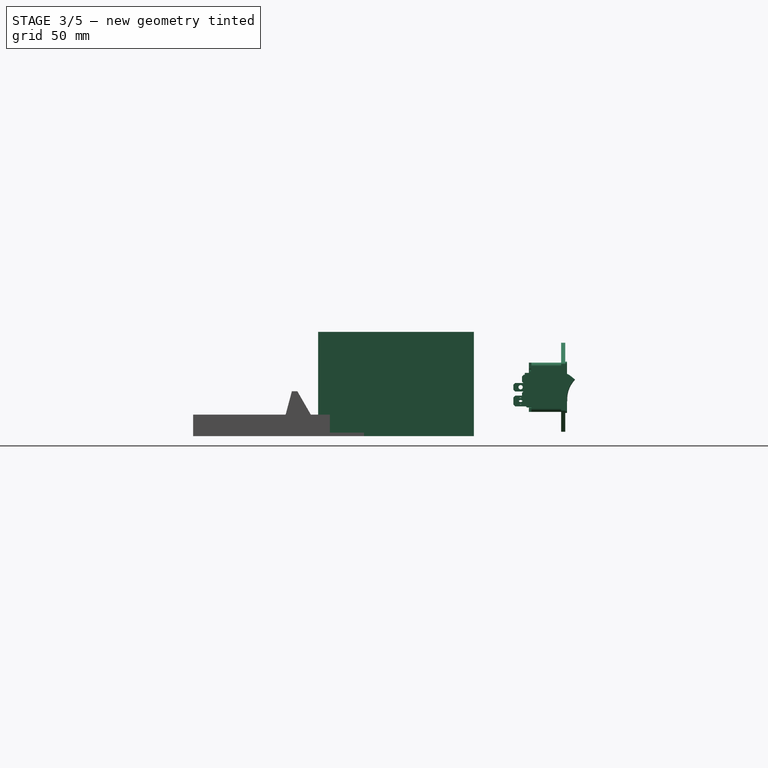
[diagram: stage 3 of 5 — right view after this stage's code; geometry added in this stage tinted green]
FEATURE [PartDesign::Body] Body  label="FrontPanel"
  AllowCompound = false
  Group = -> [Sketch,Pad002,DatumPlane,Sketch004,Pocket,Sketch014,Sketch008,Sketch006,Pocket006,Pad005,MultiTransform,LinearPattern,Mirrored,Pad006,Pocket001,Sketch009,Pocket002,Sketch010,Sketch011,Pocket003,Sketch012,Pocket004,Sketch013,Pocket005]
  Origin = -> Origin
  Placement = pos=(0,-135,0) rot=(0,0,1;0rad)
  Tip = -> Pocket005
FEATURE [Part::Feature] Part__Feature002  label="Propeller"
  Placement = pos=(17.5156,29.2683,49.1051) rot=(-0.285334,0,0.958428;3.14159rad)
  shape: bbox 56.38 x 20.06 x 56.77 mm, 54 faces, 8 solids (baked)
FEATURE [Part::Feature] Part__Feature003  label="Motor"
  Placement = pos=(17.5156,39.2683,49.1051) rot=(0,0,1;3.14159rad)
  shape: bbox 41.48 x 16.5 x 55.78 mm, 36 faces, 2 solids (baked)
FEATURE [Part::Feature] Part__Feature004  label="Housing"
  Placement = pos=(17.5156,30.7683,49.1051) rot=(0,0,1;0rad)
  shape: bbox 66.23 x 25 x 66.23 mm, 155 faces (baked)
FEATURE [App::Part] Panel_Fan  label="Panel Fan"
  Group = -> [Part__Feature004,Part__Feature003,Part__Feature002]
  Origin = -> Origin013
  Placement = pos=(39,112,20.5) rot=(0,1,0;4.71239rad)
FEATURE [Part::Feature] Part__Feature047  label="Arduino_Uno_CNC_Shield_V3"
  Placement = pos=(6.53418,-55.6901,11.0292) rot=(0,0,1;0rad)
  shape: bbox 69 x 53.5 x 27.15 mm, 4690 faces, 92 solids (baked)
FEATURE [Part::Feature] Compound005  label="Arduino UNO Rev.3 (CH340)"
  shape: bbox 75.01 x 53.3 x 16.22 mm, 5010 faces, 46 solids (baked)
FEATURE [App::Part] Part002  label="CNC-Controller"
  Group = -> [Part__Feature047,Compound005]
  Origin = -> Origin014
  Placement = pos=(-44,95,6) rot=(0,0,1;0rad)
FEATURE [Part::Box] Box  label="5V PowerSupply"
  AttacherType = Attacher::AttachEngine3D
  Height = 33
  Length = 86.5
  Placement = pos=(45,22,0) rot=(0.57735,0.57735,0.57735;2.0944rad)
  Width = 58
FEATURE [Part::Feature] Compound006  label="Switch_KCD1_10A_250V_001"
  Placement = pos=(14,-3e-15,1.3) rot=(0,0,-1;1.5708rad)
  shape: bbox 15 x 21.3 x 29.37 mm, 145 faces, 6 solids (baked)
FEATURE [Part::Feature] Body011002  label="FuseHolder"
  Placement = pos=(0,0,3.3) rot=(0,0,1;0rad)
  shape: bbox 12.3 x 24 x 18.4 mm, 49 faces (baked)
FEATURE [Part::Feature] Compound007  label="Housing001"
  shape: bbox 59 x 49.5 x 29.8 mm, 348 faces, 10 solids (baked)
FEATURE [Part::Compound] Compound  label="Power inlet IEC 320 C14"
  Links = -> [Compound007,Compound006,Body011002]
  Placement = pos=(85.8,157,27.2) rot=(-1,0,0;1.5708rad)
FEATURE [PartDesign::Pocket] Pocket010
  BaseFeature = -> LinearPattern001
  Direction = (0,1,-2e-16)
  Length = 2
  Length2 = 5
  Profile = -> Sketch025
  ReferenceAxis = -> Sketch025 [N_Axis]
  Reversed = true
  Suppressed = false
  Type = 0
FEATURE [PartDesign::Pocket] Pocket011
  BaseFeature = -> Pocket010
  Direction = (0,1,-2e-16)
  Length = 5
  Length2 = 5
  Profile = -> Sketch026
  ReferenceAxis = -> Sketch026 [N_Axis]
  Reversed = true
  Suppressed = false
  Type = 0
FEATURE [PartDesign::Pad] Pad014
  BaseFeature = -> Pocket011
  Direction = (0,0,1)
  Length = 4
  Length2 = 10
  Profile = -> Sketch027
  ReferenceAxis = -> Sketch027 [N_Axis]
  Suppressed = false
  Type = 0
FEATURE [PartDesign::Pad] Pad015
  BaseFeature = -> Pad014
  Direction = (0,0,1)
  Length = 6
  Length2 = 10
  Profile = -> Sketch028
  ReferenceAxis = -> Sketch028 [N_Axis]
  Suppressed = false
  Type = 0
FEATURE [PartDesign::Pocket] Pocket012
  BaseFeature = -> Pad015
  Direction = (-1,0,0)
  Length = 12
  Length2 = 5
  Midplane = true
  Profile = -> Sketch029
  ReferenceAxis = -> Sketch029 [N_Axis]
  Suppressed = false
  Type = 0
FEATURE [PartDesign::Body] Body011003  label="BackPanel"
  AllowCompound = false
  Group = -> [Sketch015,Pad007,Pad008,Sketch022,Pad012,LinearPattern002,Sketch023,Pad013,Pocket008,PolarPattern,Sketch016,Sketch024,Sketch030,Pocket013,Pocket014,Pocket009,Sketch017,Sketch018,Sketch019,Pad009,Sketch020,Sketch031,Hole,Pad010,Sketch021,Pad011,LinearPattern001,Sketch025,Pocket010,Sketch026,Pocket011,Sketch027,Sketch028,Pad014,Pad015,Sketch029,Pocket012]
  Origin = -> Origin016
  Placement = pos=(0,157,47.5) rot=(1,0,0;1.5708rad)
  Tip = -> Pocket012
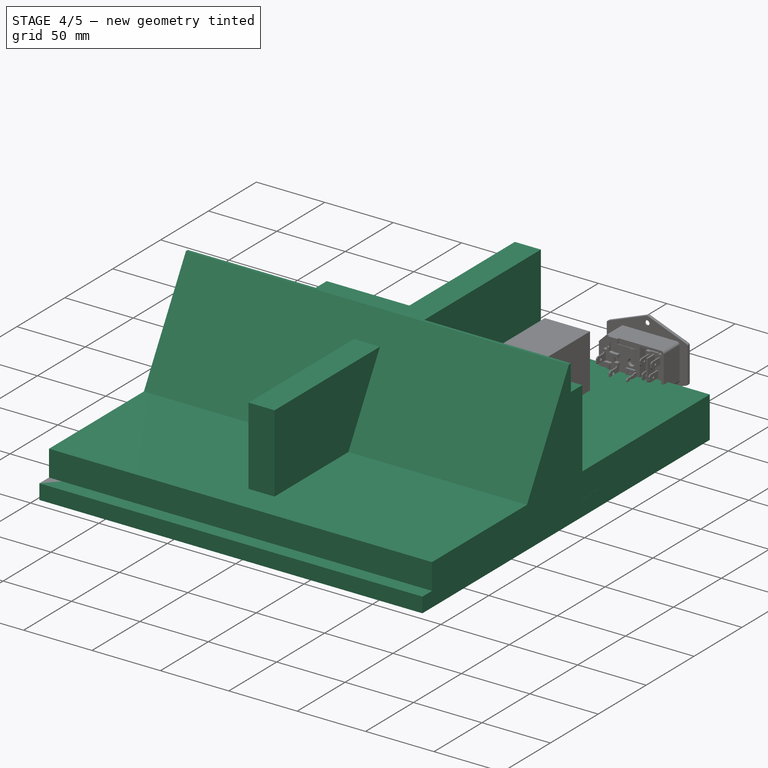
[diagram: stage 4 of 5 — iso view after this stage's code; geometry added in this stage tinted green]
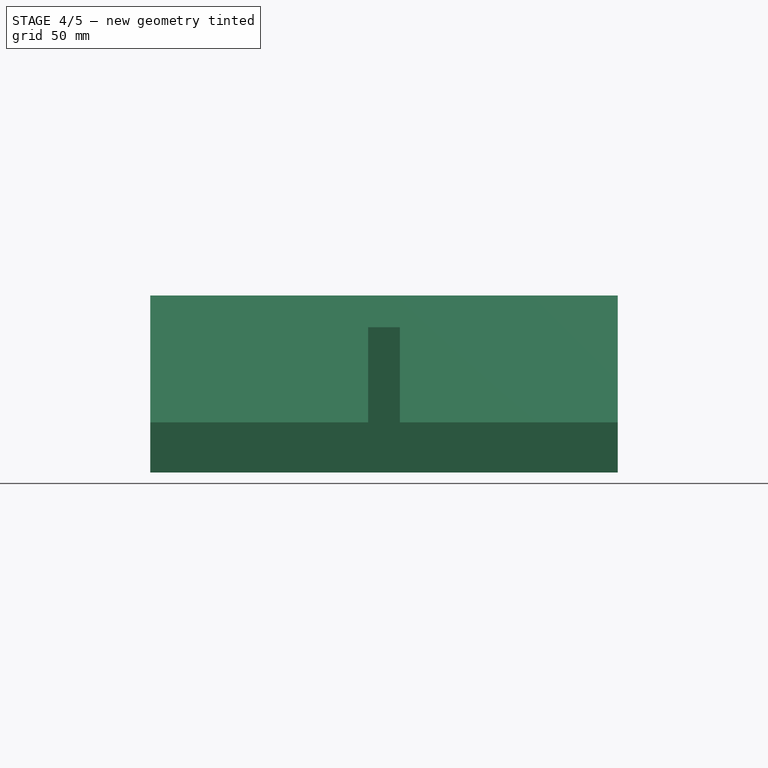
[diagram: stage 4 of 5 — front view after this stage's code; geometry added in this stage tinted green]
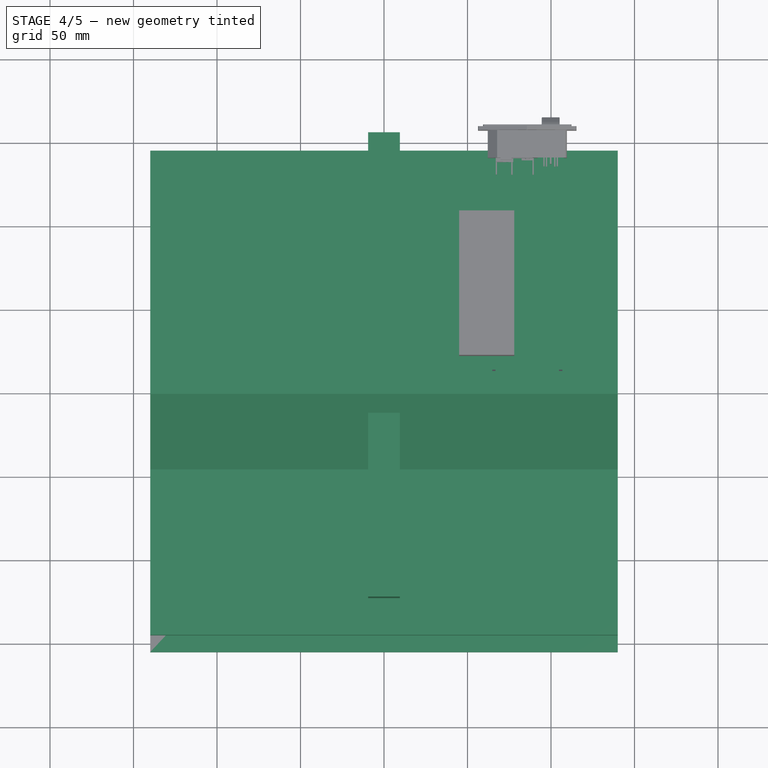
[diagram: stage 4 of 5 — top view after this stage's code; geometry added in this stage tinted green]
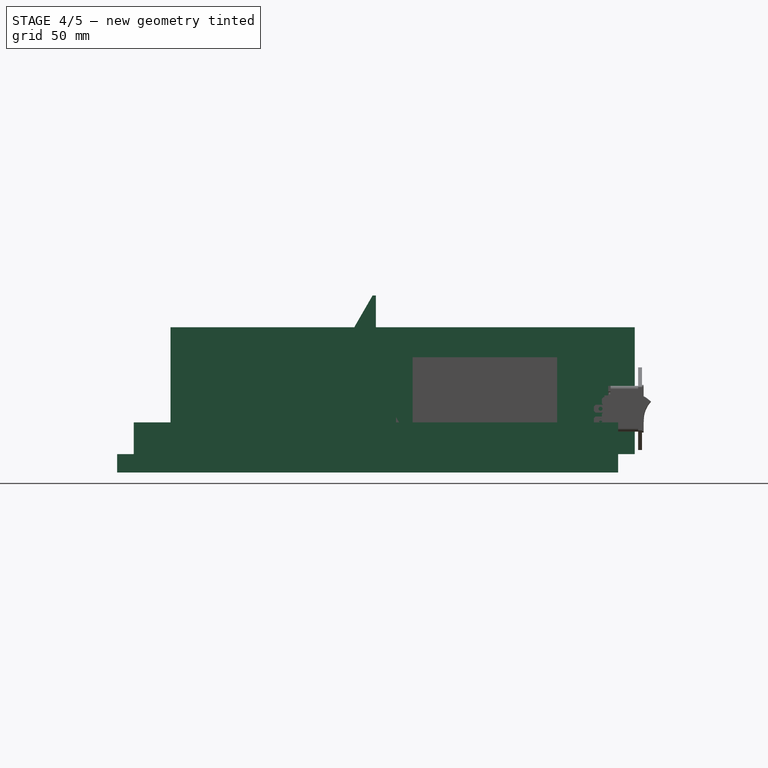
[diagram: stage 4 of 5 — right view after this stage's code; geometry added in this stage tinted green]
FEATURE [Sketcher::SketchObject] Sketch001
  AttachmentSupport = -> [XY_Plane001]
  FullyConstrained = true
  MapMode = 5
  sketch-geometry (4):
    g0: LineSegment StartX=140 StartY=145 StartZ=0 EndX=-140 EndY=145 EndZ=0
    g1: LineSegment StartX=-140 StartY=145 StartZ=0 EndX=-140 EndY=-145 EndZ=0
    g2: LineSegment StartX=-140 StartY=-145 StartZ=0 EndX=140 EndY=-145 EndZ=0
    g3: LineSegment StartX=140 StartY=-145 StartZ=0 EndX=140 EndY=145 EndZ=0
  constraints (11):
    c: Coincident(g0,g1)
    c: Coincident(g1,g2)
    c: Coincident(g2,g3)
    c: Coincident(g3,g0)
    c: Horizontal(g0)
    c: Horizontal(g2)
    c: Vertical(g3)
    c: Vertical(g1)
    c: Symmetric(g1,g0,g-1)
    c: DistanceX(g2,g2) = 280
    c: DistanceY(g1,g1) = 290
FEATURE [PartDesign::Pad] Pad
  Direction = (0,0,1)
  Length = 19
  Length2 = 10
  Profile = -> Sketch001
  ReferenceAxis = -> Sketch001 [N_Axis]
  Suppressed = false
  Type = 0
FEATURE [PartDesign::Body] Body001  label="TopPlate"
  AllowCompound = false
  Group = -> [Sketch001,Pad]
  Origin = -> Origin001
  Placement = pos=(0,10,76) rot=(0,0,1;0rad)
  Tip = -> Pad
FEATURE [PartDesign::ShapeBinder] ShapeBinder
  Support = -> [Sketch001]
  TraceSupport = false
FEATURE [Sketcher::SketchObject] Sketch002
  AttachmentSupport = -> [XY_Plane002]
  ExternalGeometry = -> [ShapeBinder]
  FullyConstrained = true
  MapMode = 5
  sketch-geometry (4):
    g0: LineSegment StartX=-140 StartY=145 StartZ=0 EndX=140 EndY=145 EndZ=0
    g1: LineSegment StartX=140 StartY=145 StartZ=0 EndX=140 EndY=-155 EndZ=0
    g2: LineSegment StartX=140 StartY=-155 StartZ=0 EndX=-140 EndY=-155 EndZ=0
    g3: LineSegment StartX=-140 StartY=-155 StartZ=0 EndX=-140 EndY=145 EndZ=0
  constraints (10):
    c: Coincident(g0,g1)
    c: Coincident(g1,g2)
    c: Coincident(g2,g3)
    c: Coincident(g3,g0)
    c: Horizontal(g2)
    c: Vertical(g1)
    c: Vertical(g3)
    c: Coincident(g0,g-3)
    c: Coincident(g-4,g0)
    c: DistanceY(g3,g3) = 300
FEATURE [PartDesign::Pad] Pad001
  Direction = (0,0,1)
  Length = 11
  Length2 = 10
  Profile = -> Sketch002
  ReferenceAxis = -> Sketch002 [N_Axis]
  Reversed = true
  Suppressed = false
  Type = 0
FEATURE [PartDesign::Body] Body002  label="BottomPlate"
  AllowCompound = false
  Group = -> [ShapeBinder,Sketch002,Pad001]
  Origin = -> Origin002
  Placement = pos=(0,10,0) rot=(0,0,1;0rad)
  Tip = -> Pad001
FEATURE [Part::Feature] Part__Feature001  label="Case_Cover"
  Placement = pos=(-102.8,-54.6,-6) rot=(0,0,1;0rad)
  shape: bbox 194 x 108 x 49 mm, 467 faces (baked)
FEATURE [Part::Feature] Part__Feature  label="Case_Bottom"
  Placement = pos=(-102.8,-54.6,-6) rot=(0,0,1;0rad)
  shape: bbox 221.8 x 187.7 x 77.43 mm, 206 faces (baked)
FEATURE [App::Part] PowerSupply_2_240_12  label="PowerSupply_2-240-12"
  Group = -> [Part__Feature,Part__Feature001]
  Origin = -> Origin007
  Placement = pos=(-4,-51.5,6) rot=(0,0,-1;3.14159rad)
FEATURE [Part::Feature] Compound001  label="PCB"
  Placement = pos=(0,0,0.2) rot=(0,0,1;0rad)
  shape: bbox 78.05 x 52 x 19.5 mm, 172 faces, 19 solids (baked)
FEATURE [Part::Feature] Body003  label="Alu-Profile"
  shape: bbox 85.2 x 55 x 30.2 mm, 50 faces (baked)
FEATURE [Part::Feature] Body001001  label="Cover"
  Placement = pos=(-42.6,0,25.8) rot=(0,0,1;0rad)
  shape: bbox 95.2 x 60.3 x 33.4 mm, 169 faces (baked)
FEATURE [App::Part] Part  label="SpeedController"
  Group = -> [Body003,Compound001,Body001001]
  Origin = -> Origin008
  Placement = pos=(-47.6,-139.778,38.9008) rot=(0,-0.500011,0.866019;3.14159rad)
FEATURE [Sketcher::SketchObject] Sketch
  AttachmentSupport = -> [YZ_Plane]
  FullyConstrained = true
  MapMode = 5
  Placement = pos=(0,0,0) rot=(0.57735,0.57735,0.57735;2.0944rad)
  sketch-geometry (8):
    g0: LineSegment StartX=0 StartY=95 StartZ=0 EndX=-2 EndY=95 EndZ=0
    g1: LineSegment StartX=-2 StartY=95 StartZ=0 EndX=-51.9408 EndY=8.5 EndZ=0
    g2: LineSegment StartX=-51.9408 StartY=8.5 StartZ=0 EndX=-37.2184 EndY=0 EndZ=0
    g3: LineSegment StartX=-37.2184 StartY=0 StartZ=0 EndX=12 EndY=0 EndZ=0
    g4: LineSegment StartX=0 StartY=95 StartZ=0 EndX=0 EndY=76 EndZ=0
    g5: LineSegment StartX=0 StartY=76 StartZ=0 EndX=12 EndY=76 EndZ=0
    g6: LineSegment StartX=12 StartY=76 StartZ=0 EndX=12 EndY=0 EndZ=0
    g7: GeomPoint X=-56.8483 Y=0 Z=0
  constraints (24):
    c: Horizontal(g0)
    c: Coincident(g0,g1)
    c: Coincident(g1,g2)
    c: Coincident(g2,g3)
    c: Horizontal(g3)
    c: Coincident(g0,g4)
    c: Vertical(g4)
    c: Coincident(g4,g5)
    c: Horizontal(g5)
    c: Coincident(g5,g6)
    c: Coincident(g6,g3)
    c: Vertical(g6)
    c: PointOnObject(g3,g-1)
    c: DistanceX(g0,g5) = 12
    c: DistanceX(g0,g0) = 2
    c: DistanceY(g5,g0) = 19
    c: DistanceY(g6,g6) = 76
    c: Angle(g1,g6) = 0.523599
    c: Perpendicular(g2,g1)
    c: Distance(g2) = 17
    c: PointOnObject(g0,g-2)
    c: PointOnObject(g7,g-1)
    c: PointOnObject(g7,g1)
    c: DistanceX(g7,g-1) = 56.8483  'PlaneDist'
FEATURE [PartDesign::Pad] Pad002  label="Pad_OuterHull"
  Direction = (1,0,0)
  Length = 280
  Length2 = 10
  Midplane = true
  Placement = pos=(0,0,0) rot=(0.57735,0.57735,0.57735;2.0944rad)
  Profile = -> Sketch
  ReferenceAxis = -> Sketch [N_Axis]
  Suppressed = false
  Type = 0
FEATURE [PartDesign::Plane] DatumPlane
  AttachmentOffset = pos=(0,0,56.8483) rot=(-1,0,0;0.523599rad)
  AttachmentSupport = -> [XZ_Plane]
  Length = 66.8756
  MapMode = 5
  Placement = pos=(0,-56.8483,1.26e-14) rot=(1,0,0;1.0472rad)
  ResizeMode = 0
  Width = 159.269
  expr: .AttachmentOffset.Base.z = Sketch.Constraints.PlaneDist
FEATURE [Sketcher::SketchObject] Sketch004
  AttachmentSupport = -> [YZ_Plane]
  ExternalGeometry = -> [Sketch]
  FullyConstrained = true
  MapMode = 5
  Placement = pos=(0,0,0) rot=(0.57735,0.57735,0.57735;2.0944rad)
  expr: Constraints[17] = Constraints[6]
  expr: Constraints[21] = Constraints[6]
  expr: Constraints[7] = Constraints[6]
  sketch-geometry (8):
    g0: LineSegment StartX=-9.43442 StartY=78.9232 StartZ=0 EndX=-49.7552 EndY=9.08564 EndZ=0
    g1: LineSegment StartX=-49.7552 StartY=9.08564 StartZ=0 EndX=-36.7896 EndY=1.6 EndZ=0
    g2: LineSegment StartX=-36.7896 StartY=1.6 StartZ=0 EndX=13 EndY=1.6 EndZ=0
    g3: LineSegment StartX=13 StartY=1.6 StartZ=0 EndX=13 EndY=74.4 EndZ=0
    g4: LineSegment StartX=-49.7552 StartY=9.08564 StartZ=0 EndX=-50.5552 EndY=7.7 EndZ=0
    g5: LineSegment StartX=-49.7552 StartY=9.08564 StartZ=0 EndX=-51.1408 EndY=9.88564 EndZ=0
    g6: LineSegment StartX=13 StartY=74.4 StartZ=0 EndX=-1.6 EndY=74.4 EndZ=0
    g7: LineSegment StartX=-1.6 StartY=74.4 StartZ=0 EndX=-9.43442 EndY=78.9232 EndZ=0
  constraints (24):
    c: Coincident(g0,g1)
    c: Coincident(g1,g2)
    c: Horizontal(g2)
    c: Coincident(g2,g3)
    c: Vertical(g3)
    c: Coincident(g3,g6)
    c: DistanceY(g6,g-3) = 1.6
    c: DistanceY(g-4,g2) = 1.6
    c: Parallel(g1,g-6)
    c: Parallel(g0,g-5)
    c: Coincident(g4,g0)
    c: PointOnObject(g4,g-6)
    c: Coincident(g5,g0)
    c: PointOnObject(g5,g-5)
    c: Perpendicular(g5,g-5)
    c: Perpendicular(g-6,g4)
    c: Equal(g4,g5)
    c: Distance(g5) = 1.6
    c: DistanceX(g-4,g2) = 1
    c: Horizontal(g6)
    c: Coincident(g0,g7)
    c: DistanceX(g6,g-1) = 1.6
    c: Perpendicular(g7,g-5)
    c: Coincident(g7,g6)
FEATURE [PartDesign::Pocket] Pocket  label="Pocket_InnerHull"
  BaseFeature = -> Pad002
  Direction = (-1,0,0)
  Length = 248.8
  Length2 = 5
  Midplane = true
  Placement = pos=(0,0,0) rot=(0.57735,0.57735,0.57735;2.0944rad)
  Profile = -> Sketch004
  ReferenceAxis = -> Sketch004 [N_Axis]
  Suppressed = false
  Type = 0
FEATURE [Sketcher::SketchObject] Sketch006
  AttachmentSupport = -> [DatumPlane]
  FullyConstrained = true
  MapMode = 5
  Placement = pos=(0,-56.8483,1.42e-14) rot=(1,0,0;1.0472rad)
  sketch-geometry (22):
    g0: LineSegment StartX=140 StartY=9.86 StartZ=0 EndX=-140 EndY=9.86 EndZ=0
    g1: LineSegment StartX=-140 StartY=109.7 StartZ=0 EndX=140 EndY=109.7 EndZ=0
    g2: LineSegment StartX=-140 StartY=59.78 StartZ=0 EndX=140 EndY=59.78 EndZ=0
    g3: Circle CenterX=-104 CenterY=42.28 CenterZ=0 NormalX=0 NormalY=0 NormalZ=1 AngleXU=0 Radius=11
    g4: LineSegment StartX=-121 StartY=109.7 StartZ=0 EndX=-121 EndY=9.86 EndZ=0
    g5: LineSegment StartX=-50 StartY=87.53 StartZ=0 EndX=39.8 EndY=87.53 EndZ=0
    g6: LineSegment StartX=39.8 StartY=87.53 StartZ=0 EndX=39.8 EndY=32.03 EndZ=0
    g7: LineSegment StartX=39.8 StartY=32.03 StartZ=0 EndX=-50 EndY=32.03 EndZ=0
    g8: LineSegment StartX=-50 StartY=32.03 StartZ=0 EndX=-50 EndY=87.53 EndZ=0
    g9: Circle CenterX=59.8 CenterY=42.78 CenterZ=0 NormalX=0 NormalY=0 NormalZ=1 AngleXU=0 Radius=12
    g10: Circle CenterX=59.8 CenterY=42.78 CenterZ=0 NormalX=0 NormalY=0 NormalZ=1 AngleXU=0 Radius=3.65
    g11: Circle CenterX=59.8 CenterY=76.78 CenterZ=0 NormalX=0 NormalY=0 NormalZ=1 AngleXU=0 Radius=6.1
    g12: LineSegment StartX=-117.75 StartY=89.98 StartZ=0 EndX=-90.25 EndY=89.98 EndZ=0
    g13: LineSegment StartX=-90.25 StartY=89.98 StartZ=0 EndX=-90.25 EndY=68.58 EndZ=0
    g14: LineSegment StartX=-90.25 StartY=68.58 StartZ=0 EndX=-117.75 EndY=68.58 EndZ=0
    g15: LineSegment StartX=-117.75 StartY=68.58 StartZ=0 EndX=-117.75 EndY=89.98 EndZ=0
    g16: GeomPoint X=-104 Y=79.28 Z=0
    g17: LineSegment StartX=102 StartY=74.78 StartZ=0 EndX=102 EndY=59.78 EndZ=0
    g18: LineSegment StartX=102 StartY=59.78 StartZ=0 EndX=102 EndY=44.78 EndZ=0
    g19: Circle CenterX=102 CenterY=74.78 CenterZ=0 NormalX=0 NormalY=0 NormalZ=1 AngleXU=0 Radius=3.6
    g20: Circle CenterX=102 CenterY=59.78 CenterZ=0 NormalX=0 NormalY=0 NormalZ=1 AngleXU=0 Radius=3.6
    g21: Circle CenterX=102 CenterY=44.78 CenterZ=0 NormalX=0 NormalY=0 NormalZ=1 AngleXU=0 Radius=3.6
  constraints (61):
    c: Horizontal(g1)
    c: Symmetric(g0,g0,g-2)
    c: DistanceX(g0,g0) = 280
    c: Vertical(g0,g1)
    c: Equal(g0,g1)
    c: DistanceY(g-1,g0) = 9.86
    c: DistanceY(g0,g1) = 99.84
    c: Equal(g1,g2)
    c: Symmetric(g0,g1,g2)
    c: PointOnObject(g4,g1)
    c: PointOnObject(g4,g0)
    c: Vertical(g4)
    c: DistanceX(g1,g4) = 19
    c: DistanceX(g3,g-1) = 104
    c: Diameter(g3) = 22
    c: Coincident(g5,g6)
    c: Coincident(g6,g7)
    c: Coincident(g7,g8)
    c: Coincident(g8,g5)
    c: Horizontal(g5)
    c: Horizontal(g7)
    c: Vertical(g6)
    c: Vertical(g8)
    c: DistanceX(g5,g5) = 89.8
    c: DistanceY(g6,g6) = 55.5
    c: Symmetric(g7,g5,g2)
    c: Diameter(g9) = 24
    c: DistanceX(g6,g9) = 20
    c: Coincident(g10,g9)
    c: Diameter(g10) = 7.3
    c: Symmetric(g10,g11,g2)
    c: DistanceY(g10,g11) = 34
    c: Diameter(g11) = 12.2
    c: DistanceY(g3,g2) = 17.5
    c: Coincident(g12,g13)
    c: Coincident(g13,g14)
    c: Coincident(g14,g15)
    c: Coincident(g15,g12)
    c: Horizontal(g12)
    c: Horizontal(g14)
    c: Vertical(g13)
    c: Vertical(g15)
    c: Symmetric(g14,g12,g16)
    c: Vertical(g3,g16)
    c: DistanceY(g15,g15) = 21.4
    c: DistanceX(g12,g12) = 27.5
    c: DistanceY(g2,g16) = 19.5
    c: DistanceX(g7,g-1) = 50
    c: Vertical(g17)
    c: Coincident(g18,g17)
    c: Vertical(g18)
    c: Equal(g18,g17)
    c: Coincident(g19,g17)
    c: Coincident(g20,g17)
    c: Coincident(g21,g18)
    c: PointOnObject(g20,g2)
    c: Equal(g19,g20)
    c: Equal(g20,g21)
    c: Diameter(g19) = 7.2
    c: DistanceY(g17,g17) = 15
    c: DistanceX(g-1,g21) = 102
FEATURE [Part::Feature] Compound002  label="DPST Switch"
  Placement = pos=(-104,-152.226,68.7198) rot=(0.447214,-0.447214,0.774597;1.82348rad)
  shape: bbox 32.01 x 38.69 x 32.02 mm, 137 faces, 6 solids (baked)
FEATURE [Part::Feature] Compound003  label="EmergencyStop"
  Placement = pos=(-104,-170.501,36.6625) rot=(0.447214,0.447214,-0.774597;1.82348rad)
  shape: bbox 43.3 x 79.72 x 66.35 mm, 123 faces, 4 solids (baked)
FEATURE [Sketcher::SketchObject] Sketch007
  AttachmentSupport = -> [YZ_Plane011]
  FullyConstrained = true
  MapMode = 5
  Placement = pos=(0,0,0) rot=(0.57735,0.57735,0.57735;2.0944rad)
  sketch-geometry (4):
    g0: LineSegment StartX=-123 StartY=76 StartZ=0 EndX=155 EndY=76 EndZ=0
    g1: LineSegment StartX=155 StartY=76 StartZ=0 EndX=155 EndY=0 EndZ=0
    g2: LineSegment StartX=155 StartY=0 StartZ=0 EndX=-123 EndY=0 EndZ=0
    g3: LineSegment StartX=-123 StartY=0 StartZ=0 EndX=-123 EndY=76 EndZ=0
  constraints (12):
    c: Coincident(g0,g1)
    c: Coincident(g1,g2)
    c: Coincident(g2,g3)
    c: Coincident(g3,g0)
    c: Horizontal(g2)
    c: Vertical(g1)
    c: Vertical(g3)
    c: PointOnObject(g1,g-1)
    c: DistanceY(g3,g3) = 76
    c: DistanceX(g-1,g0) = 155
    c: DistanceX(g2,g2) = 278
    c: Horizontal(g0)
FEATURE [PartDesign::Pad] Pad004
  Direction = (1,0,0)
  Length = 19
  Length2 = 10
  Midplane = true
  Placement = pos=(0,0,0) rot=(0.57735,0.57735,0.57735;2.0944rad)
  Profile = -> Sketch007
  ReferenceAxis = -> Sketch007 [N_Axis]
  Suppressed = false
  Type = 0
FEATURE [PartDesign::Body] Body001002  label="SidePlateL"
  AllowCompound = false
  Group = -> [Sketch007,Pad004]
  Origin = -> Origin010
  Placement = pos=(-130.5,0,0) rot=(0,0,1;0rad)
  Tip = -> Pad004
FEATURE [PartDesign::FeatureBase] Clone
  BaseFeature = -> Body001002
  Suppressed = false
FEATURE [PartDesign::Body] Body001003  label="SidePlateR"
  AllowCompound = false
  BaseFeature = -> Body001002
  Group = -> [Clone]
  Origin = -> Origin011
  Placement = pos=(130.5,0,0) rot=(0,0,1;0rad)
  Tip = -> Clone
FEATURE [Sketcher::SketchObject] Sketch008
  AttachmentSupport = -> [YZ_Plane]
  ExternalGeometry = -> [Sketch004]
  FullyConstrained = true
  MapMode = 5
  Placement = pos=(0,0,0) rot=(0.57735,0.57735,0.57735;2.0944rad)
  sketch-geometry (4):
    g0: LineSegment StartX=-9.43442 StartY=78.9232 StartZ=0 EndX=-49.7552 EndY=9.08564 EndZ=0
    g1: LineSegment StartX=-49.7552 StartY=9.08564 StartZ=0 EndX=-46.2911 EndY=7.08564 EndZ=0
    g2: LineSegment StartX=-46.2911 StartY=7.08564 StartZ=0 EndX=-5.97032 EndY=76.9232 EndZ=0
    g3: LineSegment StartX=-5.97032 StartY=76.9232 StartZ=0 EndX=-9.43442 EndY=78.9232 EndZ=0
  constraints (10):
    c: Coincident(g0,g1)
    c: Coincident(g1,g2)
    c: Coincident(g2,g3)
    c: Coincident(g3,g0)
    c: Perpendicular(g2,g3)
    c: Perpendicular(g1,g0)
    c: Equal(g3,g1)
    c: Coincident(g0,g-4)
    c: Coincident(g0,g-3)
    c: Distance(g3) = 4
FEATURE [PartDesign::LinearPattern] LinearPattern
  Direction = -> Sketch008 [N_Axis]
  Length = 120
  Mode = 0
  Occurrences = 6
  Offset = 24
  Placement = pos=(0,0,0) rot=(0.57735,0.57735,0.57735;2.0944rad)
  Suppressed = false
  TransformMode = 0
FEATURE [PartDesign::Mirrored] Mirrored
  MirrorPlane = -> YZ_Plane
  Placement = pos=(0,0,0) rot=(0.57735,0.57735,0.57735;2.0944rad)
  Suppressed = false
  TransformMode = 0
FEATURE [Sketcher::SketchObject] Sketch009
  AttachmentOffset = pos=(0,0,-1.6) rot=(0,0,1;0rad)
  AttachmentSupport = -> [DatumPlane]
  FullyConstrained = true
  MapMode = 5
  Placement = pos=(0,-55.4626,-0.8) rot=(1,0,0;1.0472rad)
  sketch-geometry (12):
    g0: LineSegment StartX=140 StartY=9.86 StartZ=0 EndX=-140 EndY=9.86 EndZ=0
    g1: LineSegment StartX=-140 StartY=109.7 StartZ=0 EndX=140 EndY=109.7 EndZ=0
    g2: LineSegment StartX=-140 StartY=59.78 StartZ=0 EndX=140 EndY=59.78 EndZ=0
    g3: Circle CenterX=-104 CenterY=42.28 CenterZ=0 NormalX=0 NormalY=0 NormalZ=1 AngleXU=0 Radius=15
    g4: Circle CenterX=59.8 CenterY=42.78 CenterZ=0 NormalX=0 NormalY=0 NormalZ=1 AngleXU=0 Radius=9
    g5: Circle CenterX=59.8 CenterY=76.78 CenterZ=0 NormalX=0 NormalY=0 NormalZ=1 AngleXU=0 Radius=9
    g6: LineSegment StartX=102 StartY=74.78 StartZ=0 EndX=102 EndY=59.78 EndZ=0
    g7: LineSegment StartX=102 StartY=59.78 StartZ=0 EndX=102 EndY=44.78 EndZ=0
    g8: ArcOfCircle CenterX=102 CenterY=74.78 CenterZ=0 NormalX=0 NormalY=0 NormalZ=1 AngleXU=0 Radius=7.5 StartAngle=3e-16 EndAngle=3.14159
    g9: ArcOfCircle CenterX=102 CenterY=44.78 CenterZ=0 NormalX=0 NormalY=0 NormalZ=1 AngleXU=0 Radius=7.5 StartAngle=3.14159 EndAngle=6.28319
    g10: LineSegment StartX=94.5 StartY=74.78 StartZ=0 EndX=94.5 EndY=44.78 EndZ=0
    g11: LineSegment StartX=109.5 StartY=74.78 StartZ=0 EndX=109.5 EndY=44.78 EndZ=0
  constraints (33):
    c: Horizontal(g1)
    c: Symmetric(g0,g0,g-2)
    c: DistanceX(g0,g0) = 280
    c: Vertical(g0,g1)
    c: Equal(g0,g1)
    c: DistanceY(g-1,g0) = 9.86
    c: DistanceY(g0,g1) = 99.84
    c: Equal(g1,g2)
    c: Symmetric(g0,g1,g2)
    c: DistanceX(g3,g-1) = 104
    c: Diameter(g3) = 30
    c: Diameter(g4) = 18
    c: Symmetric(g4,g5,g2)
    c: DistanceY(g4,g5) = 34
    c: DistanceY(g3,g2) = 17.5
    c: Vertical(g6)
    c: Coincident(g7,g6)
    c: Vertical(g7)
    c: Equal(g7,g6)
    c: Coincident(g8,g6)
    c: Coincident(g9,g7)
    c: Diameter(g8) = 15
    c: DistanceY(g6,g6) = 15
    c: DistanceX(g-1,g9) = 102
    c: Equal(g5,g4)
    c: Vertical(g10)
    c: PointOnObject(g6,g2)
    c: Horizontal(g2)
    c: DistanceX(g-1,g4) = 59.8
    c: Tangent(g8,g10) = -1.5708
    c: Tangent(g9,g10) = -1.5708
    c: Tangent(g9,g11) = 1.5708
    c: Tangent(g8,g11) = 1.5708
FEATURE [Sketcher::SketchObject] Sketch010
  AttachmentSupport = -> [YZ_Plane]
  ExternalGeometry = -> [Sketch004]
  FullyConstrained = true
  MapMode = 5
  Placement = pos=(0,0,0) rot=(0.57735,0.57735,0.57735;2.0944rad)
  sketch-geometry (9):
    g0: LineSegment StartX=-9.43442 StartY=78.9232 StartZ=0 EndX=-49.7552 EndY=9.08564 EndZ=0
    g1: LineSegment StartX=-49.7552 StartY=9.08564 StartZ=0 EndX=-36.7896 EndY=1.6 EndZ=0
    g2: LineSegment StartX=-5.97032 StartY=76.9232 StartZ=0 EndX=-9.43442 EndY=78.9232 EndZ=0
    g3: LineSegment StartX=-44.2911 StartY=10.5497 StartZ=0 EndX=-5.97032 EndY=76.9232 EndZ=0
    g4: LineSegment StartX=-44.2911 StartY=10.5497 StartZ=0 EndX=-35.7179 EndY=5.6 EndZ=0
    g5: LineSegment StartX=-35.7179 StartY=5.6 StartZ=0 EndX=13 EndY=5.6 EndZ=0
    g6: LineSegment StartX=13 StartY=5.6 StartZ=0 EndX=13 EndY=1.6 EndZ=0
    g7: LineSegment StartX=13 StartY=1.6 StartZ=0 EndX=-36.7896 EndY=1.6 EndZ=0
    g8: LineSegment StartX=-44.2911 StartY=10.5497 StartZ=0 EndX=-46.2911 EndY=7.08564 EndZ=0
  constraints (23):
    c: Coincident(g0,g1)
    c: Coincident(g3,g2)
    c: Coincident(g2,g0)
    c: Coincident(g0,g-4)
    c: Coincident(g0,g-3)
    c: Distance(g2) = 4
    c: Parallel(g0,g3)
    c: Coincident(g1,g-5)
    c: PointOnObject(g2,g-4)
    c: Coincident(g3,g4)
    c: Coincident(g4,g5)
    c: Horizontal(g5)
    c: Coincident(g5,g6)
    c: Coincident(g6,g-6)
    c: Vertical(g6)
    c: Coincident(g6,g7)
    c: Coincident(g7,g1)
    c: Equal(g2,g6)
    c: Parallel(g4,g1)
    c: Coincident(g8,g3)
    c: PointOnObject(g8,g1)
    c: Perpendicular(g8,g1)
    c: Equal(g6,g8)
FEATURE [Sketcher::SketchObject] Sketch011
  AttachmentSupport = -> [XY_Plane]
  FullyConstrained = true
  MapMode = 5
  sketch-geometry (5):
    g0: ArcOfCircle CenterX=-104 CenterY=-10.5 CenterZ=0 NormalX=0 NormalY=0 NormalZ=1 AngleXU=0 Radius=3 StartAngle=0 EndAngle=3.14159
    g1: ArcOfCircle CenterX=-104 CenterY=-22.5 CenterZ=0 NormalX=0 NormalY=0 NormalZ=1 AngleXU=0 Radius=3 StartAngle=3.14159 EndAngle=6.28319
    g2: LineSegment StartX=-107 StartY=-10.5 StartZ=0 EndX=-107 EndY=-22.5 EndZ=0
    g3: LineSegment StartX=-101 StartY=-22.5 StartZ=0 EndX=-101 EndY=-10.5 EndZ=0
    g4: GeomPoint X=-104 Y=-16.5 Z=0
  constraints (11):
    c: Tangent(g0,g2) = -1.5708
    c: Tangent(g2,g1) = -1.5708
    c: Tangent(g1,g3) = -1.5708
    c: Tangent(g3,g0) = -1.5708
    c: Equal(g0,g1)
    c: Vertical(g2)
    c: DistanceX(g0,g0) = 6
    c: DistanceX(g4,g-1) = 104
    c: DistanceY(g4,g-1) = 16.5
    c: Symmetric(g1,g0,g4)
    c: DistanceY(g1,g0) = 12
FEATURE [Sketcher::SketchObject] Sketch012
  AttachmentOffset = pos=(0,0,52) rot=(0,0,1;0rad)
  AttachmentSupport = -> [XZ_Plane]
  FullyConstrained = true
  MapMode = 5
  Placement = pos=(0,-52,1.15e-14) rot=(1,0,0;1.5708rad)
  sketch-geometry (4):
    g0: Circle CenterX=-130.5 CenterY=62 CenterZ=0 NormalX=0 NormalY=0 NormalZ=1 AngleXU=0 Radius=4.5
    g1: Circle CenterX=-130.5 CenterY=14 CenterZ=0 NormalX=0 NormalY=0 NormalZ=1 AngleXU=0 Radius=4.5
    g2: Circle CenterX=130.5 CenterY=62 CenterZ=0 NormalX=0 NormalY=0 NormalZ=1 AngleXU=0 Radius=4.5
    g3: Circle CenterX=130.5 CenterY=14 CenterZ=0 NormalX=0 NormalY=0 NormalZ=1 AngleXU=0 Radius=4.5
  constraints (11):
    c: Horizontal(g1,g3)
    c: Symmetric(g0,g2,g-2)
    c: Equal(g0,g1)
    c: Equal(g1,g3)
    c: Equal(g3,g2)
    c: DistanceX(g0,g2) = 261
    c: Diameter(g0) = 9
    c: DistanceY(g1,g0) = 48
    c: DistanceY(g-1,g1) = 14
    c: Vertical(g0,g1)
    c: Vertical(g2,g3)
FEATURE [Sketcher::SketchObject] Sketch013
  AttachmentSupport = -> [XZ_Plane]
  FullyConstrained = true
  MapMode = 5
  Placement = pos=(0,0,0) rot=(1,0,0;1.5708rad)
  sketch-geometry (4):
    g0: Circle CenterX=-130.5 CenterY=62 CenterZ=0 NormalX=0 NormalY=0 NormalZ=1 AngleXU=0 Radius=2.15
    g1: Circle CenterX=-130.5 CenterY=14 CenterZ=0 NormalX=0 NormalY=0 NormalZ=1 AngleXU=0 Radius=2.15
    g2: Circle CenterX=130.5 CenterY=62 CenterZ=0 NormalX=0 NormalY=0 NormalZ=1 AngleXU=0 Radius=2.15
    g3: Circle CenterX=130.5 CenterY=14 CenterZ=0 NormalX=0 NormalY=0 NormalZ=1 AngleXU=0 Radius=2.15
  constraints (11):
    c: Horizontal(g1,g3)
    c: Symmetric(g0,g2,g-2)
    c: Equal(g0,g1)
    c: Equal(g1,g3)
    c: Equal(g3,g2)
    c: DistanceX(g0,g2) = 261
    c: Diameter(g0) = 4.3
    c: DistanceY(g1,g0) = 48
    c: DistanceY(g-1,g1) = 14
    c: Vertical(g0,g1)
    c: Vertical(g2,g3)
FEATURE [Sketcher::SketchObject] Sketch014
  AttachmentSupport = -> [YZ_Plane]
  ExternalGeometry = -> [Sketch]
  FullyConstrained = true
  MapMode = 5
  Placement = pos=(0,0,0) rot=(0.57735,0.57735,0.57735;2.0944rad)
  expr: Constraints[17] = Constraints[6]
  expr: Constraints[21] = Constraints[6]
  expr: Constraints[7] = Constraints[6]
  sketch-geometry (18):
    g0: LineSegment StartX=-9.43442 StartY=78.9232 StartZ=0 EndX=-49.7552 EndY=9.08564 EndZ=0
    g1: LineSegment StartX=-49.7552 StartY=9.08564 StartZ=0 EndX=-36.7896 EndY=1.6 EndZ=0
    g2: LineSegment StartX=-36.7896 StartY=1.6 StartZ=0 EndX=13 EndY=1.6 EndZ=0
    g3: LineSegment StartX=13 StartY=1.6 StartZ=0 EndX=13 EndY=74.4 EndZ=0
    g4: LineSegment StartX=-49.7552 StartY=9.08564 StartZ=0 EndX=-50.5552 EndY=7.7 EndZ=0
    g5: LineSegment StartX=-49.7552 StartY=9.08564 StartZ=0 EndX=-51.1408 EndY=9.88564 EndZ=0
    g6: LineSegment StartX=13 StartY=74.4 StartZ=0 EndX=-1.6 EndY=74.4 EndZ=0
    g7: LineSegment StartX=-1.6 StartY=74.4 StartZ=0 EndX=-9.43442 EndY=78.9232 EndZ=0
    g8: LineSegment StartX=13 StartY=74.4 StartZ=0 EndX=13 EndY=68.1 EndZ=0
    g9: LineSegment StartX=13 StartY=68.1 StartZ=0 EndX=-15.6832 EndY=68.1 EndZ=0
    g10: LineSegment StartX=-15.6832 StartY=68.1 StartZ=0 EndX=-9.43442 EndY=78.9232 EndZ=0
    g11: LineSegment StartX=13 StartY=55.9 StartZ=0 EndX=-22.7269 EndY=55.9 EndZ=0
    g12: LineSegment StartX=-22.7269 StartY=55.9 StartZ=0 EndX=-43.396 EndY=20.1 EndZ=0
    g13: LineSegment StartX=-43.396 StartY=20.1 StartZ=0 EndX=13 EndY=20.1 EndZ=0
    g14: LineSegment StartX=13 StartY=20.1 StartZ=0 EndX=13 EndY=55.9 EndZ=0
    g15: LineSegment StartX=13 StartY=1.6 StartZ=0 EndX=13 EndY=7.9 EndZ=0
    g16: LineSegment StartX=13 StartY=7.9 StartZ=0 EndX=-47.7016 EndY=7.9 EndZ=0
    g17: LineSegment StartX=-47.7016 StartY=7.9 StartZ=0 EndX=-36.7896 EndY=1.6 EndZ=0
  constraints (52):
    c: Coincident(g0,g1)
    c: Coincident(g1,g2)
    c: Horizontal(g2)
    c: Coincident(g2,g3)
    c: Vertical(g3)
    c: Coincident(g3,g6)
    c: DistanceY(g6,g-3) = 1.6
    c: DistanceY(g-4,g2) = 1.6
    c: Parallel(g1,g-6)
    c: Parallel(g0,g-5)
    c: Coincident(g4,g0)
    c: PointOnObject(g4,g-6)
    c: Coincident(g5,g0)
    c: PointOnObject(g5,g-5)
    c: Perpendicular(g5,g-5)
    c: Perpendicular(g-6,g4)
    c: Equal(g4,g5)
    c: Distance(g5) = 1.6
    c: DistanceX(g-4,g2) = 1
    c: Horizontal(g6)
    c: Coincident(g0,g7)
    c: DistanceX(g6,g-1) = 1.6
    c: Perpendicular(g7,g-5)
    c: Coincident(g7,g6)
    c: Coincident(g6,g8)
    c: PointOnObject(g8,g3)
    c: Coincident(g8,g9)
    c: PointOnObject(g9,g0)
    c: Horizontal(g9)
    c: Coincident(g9,g10)
    c: Coincident(g10,g7)
    c: PointOnObject(g11,g3)
    c: PointOnObject(g11,g0)
    c: Horizontal(g11)
    c: Coincident(g11,g12)
    c: PointOnObject(g12,g0)
    c: Coincident(g12,g13)
    c: PointOnObject(g13,g3)
    c: Horizontal(g13)
    c: Coincident(g13,g14)
    c: Coincident(g14,g11)
    c: Coincident(g2,g15)
    c: PointOnObject(g15,g3)
    c: Coincident(g15,g16)
    c: PointOnObject(g16,g1)
    c: Horizontal(g16)
    c: Coincident(g16,g17)
    c: Coincident(g17,g2)
    c: DistanceY(g-1,g13) = 20.1
    c: DistanceY(g14,g14) = 35.8
    c: DistanceY(g8,g8) = 6.3
    c: DistanceY(g-1,g15) = 7.9
FEATURE [PartDesign::Pocket] Pocket006
  BaseFeature = -> Pocket
  Direction = (-1,0,0)
  Length = 276.8
  Length2 = 5
  Midplane = true
  Placement = pos=(0,0,0) rot=(0.57735,0.57735,0.57735;2.0944rad)
  Profile = -> Sketch014
  ReferenceAxis = -> Sketch014 [N_Axis]
  Suppressed = false
  Type = 0
FEATURE [PartDesign::Pad] Pad005
  BaseFeature = -> Pocket006
  Direction = (1,0,0)
  Length = 2
  Length2 = 10
  Midplane = true
  Placement = pos=(0,0,0) rot=(0.57735,0.57735,0.57735;2.0944rad)
  Profile = -> Sketch008
  ReferenceAxis = -> Sketch008 [N_Axis]
  Suppressed = false
  Type = 0
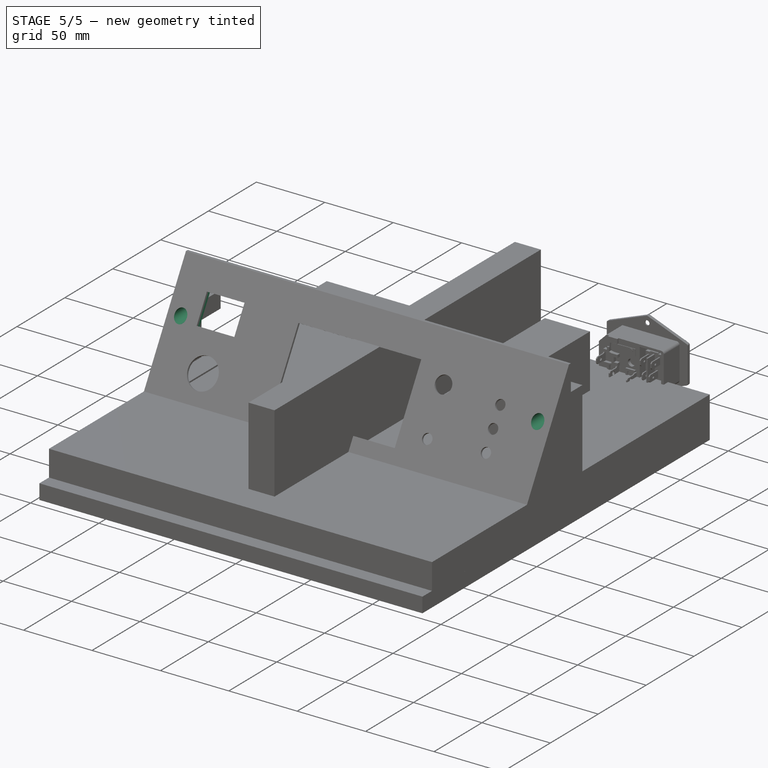
[diagram: stage 5 of 5 — iso view after this stage's code; geometry added in this stage tinted green]
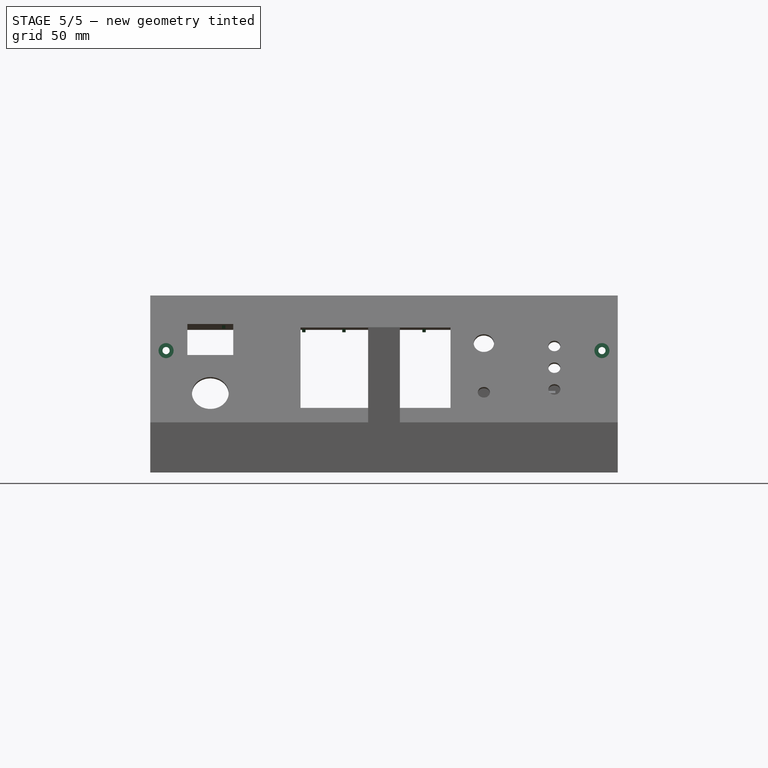
[diagram: stage 5 of 5 — front view after this stage's code; geometry added in this stage tinted green]
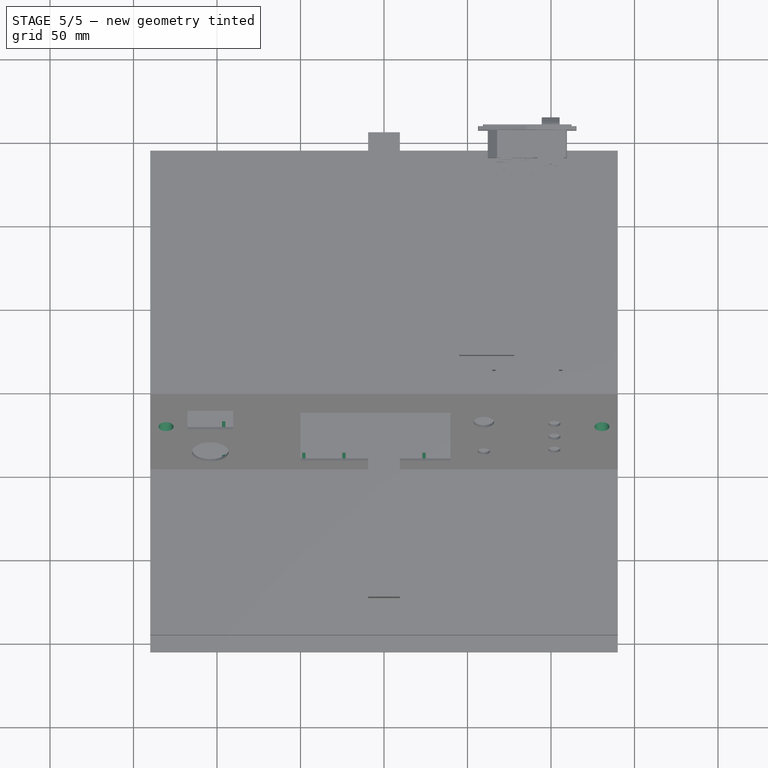
[diagram: stage 5 of 5 — top view after this stage's code; geometry added in this stage tinted green]
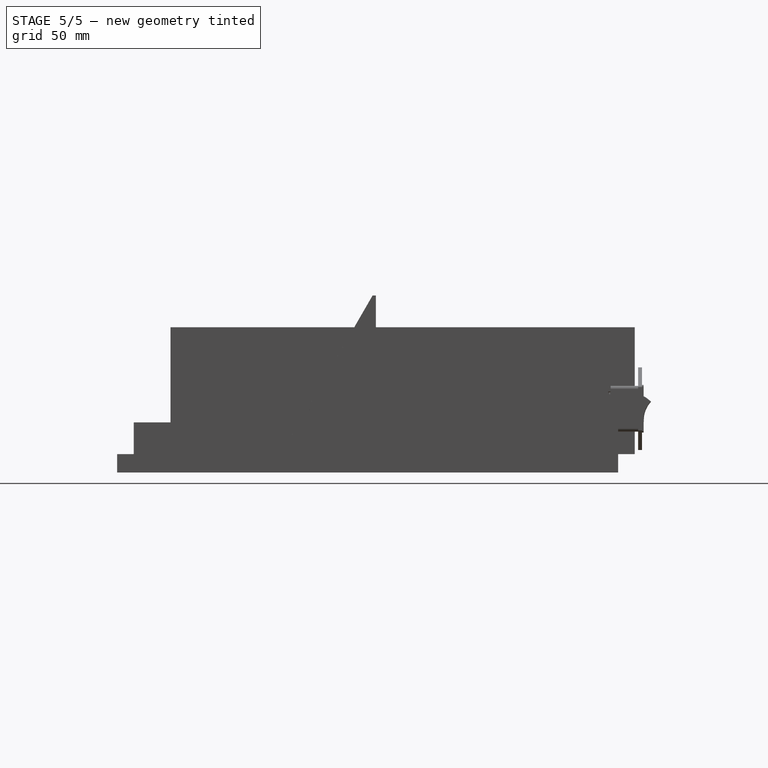
[diagram: stage 5 of 5 — right view after this stage's code; geometry added in this stage tinted green]
FEATURE [PartDesign::MultiTransform] MultiTransform
  BaseFeature = -> Pad005
  Originals = -> [Pad005]
  Placement = pos=(0,0,0) rot=(0.57735,0.57735,0.57735;2.0944rad)
  Suppressed = false
  TransformMode = 0
  Transformations = -> [LinearPattern,Mirrored]
FEATURE [PartDesign::Pad] Pad006
  BaseFeature = -> MultiTransform
  Direction = (1,0,0)
  Length = 3.2
  Length2 = 10
  Midplane = true
  Placement = pos=(0,0,0) rot=(0.57735,0.57735,0.57735;2.0944rad)
  Profile = -> Sketch010
  ReferenceAxis = -> Sketch010 [N_Axis]
  Suppressed = false
  Type = 0
FEATURE [PartDesign::Pocket] Pocket001
  BaseFeature = -> Pad006
  Direction = (0,0.866025,-0.5)
  Length = 20
  Length2 = 5
  Placement = pos=(0,0,0) rot=(0.57735,0.57735,0.57735;2.0944rad)
  Profile = -> Sketch006
  ReferenceAxis = -> Sketch006 [N_Axis]
  Suppressed = false
  Type = 0
FEATURE [PartDesign::Pocket] Pocket002
  BaseFeature = -> Pocket001
  Direction = (0,0.866025,-0.5)
  Length = 5
  Length2 = 5
  Placement = pos=(0,0,0) rot=(0.57735,0.57735,0.57735;2.0944rad)
  Profile = -> Sketch009
  ReferenceAxis = -> Sketch009 [N_Axis]
  Suppressed = false
  Type = 0
FEATURE [PartDesign::Pocket] Pocket003
  BaseFeature = -> Pocket002
  Direction = (0,0,-1)
  Length = 3
  Length2 = 5
  Placement = pos=(0,0,0) rot=(0.57735,0.57735,0.57735;2.0944rad)
  Profile = -> Sketch011
  ReferenceAxis = -> Sketch011 [N_Axis]
  Reversed = true
  Suppressed = false
  Type = 0
FEATURE [PartDesign::Pocket] Pocket004
  BaseFeature = -> Pocket003
  Direction = (0,1,-2e-16)
  Length = 62
  Length2 = 5
  Placement = pos=(0,0,0) rot=(0.57735,0.57735,0.57735;2.0944rad)
  Profile = -> Sketch012
  ReferenceAxis = -> Sketch012 [N_Axis]
  Suppressed = false
  Type = 0
FEATURE [PartDesign::Pocket] Pocket005
  BaseFeature = -> Pocket004
  Direction = (0,1,-2e-16)
  Length = 5
  Length2 = 5
  Placement = pos=(0,0,0) rot=(0.57735,0.57735,0.57735;2.0944rad)
  Profile = -> Sketch013
  ReferenceAxis = -> Sketch013 [N_Axis]
  Suppressed = false
  Type = 1
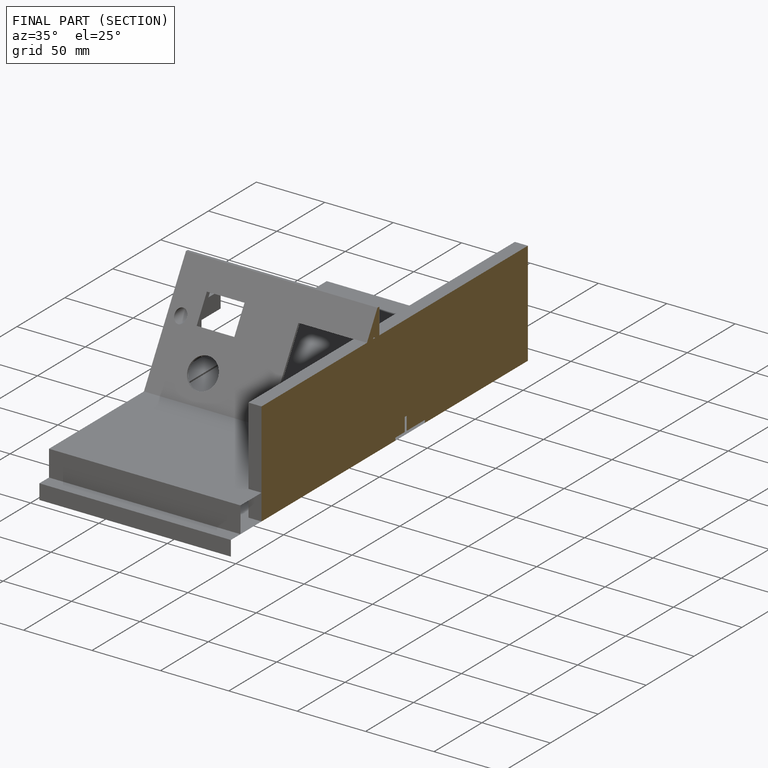
[diagram: finished part — half-section view (interior)]
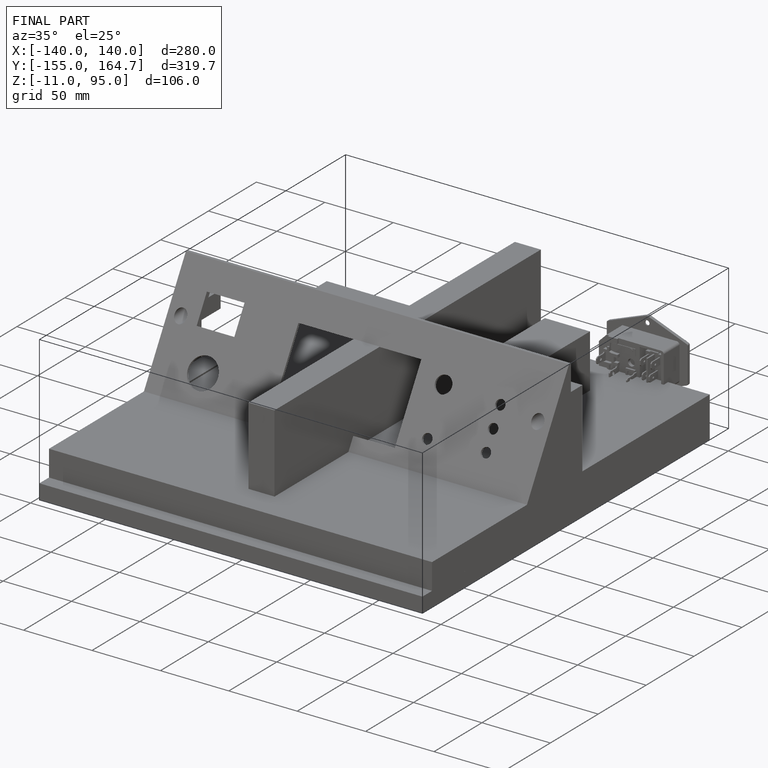
[diagram: finished part — iso view with bounding-box wireframe]
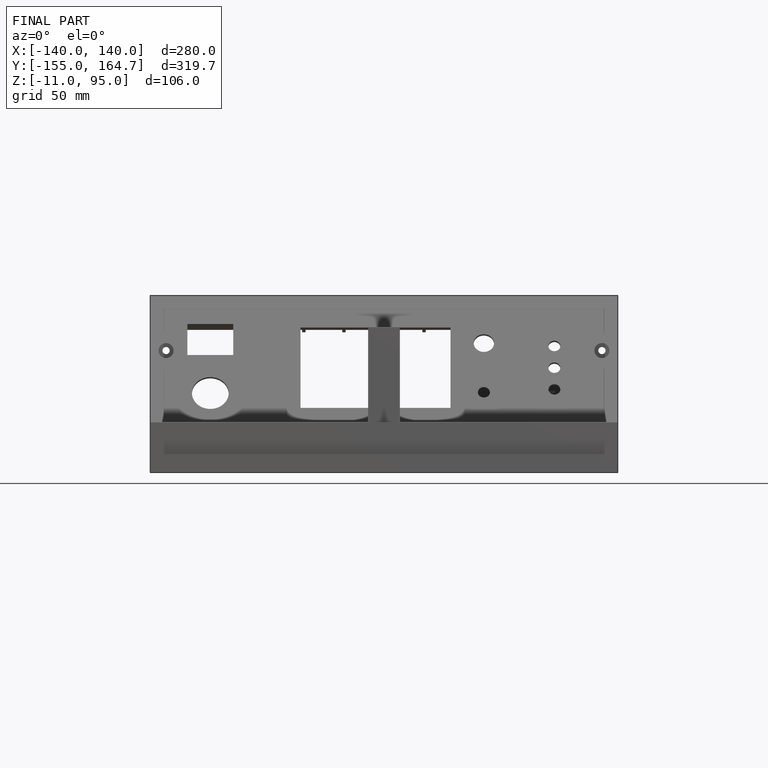
[diagram: finished part — front view with bounding-box wireframe]
